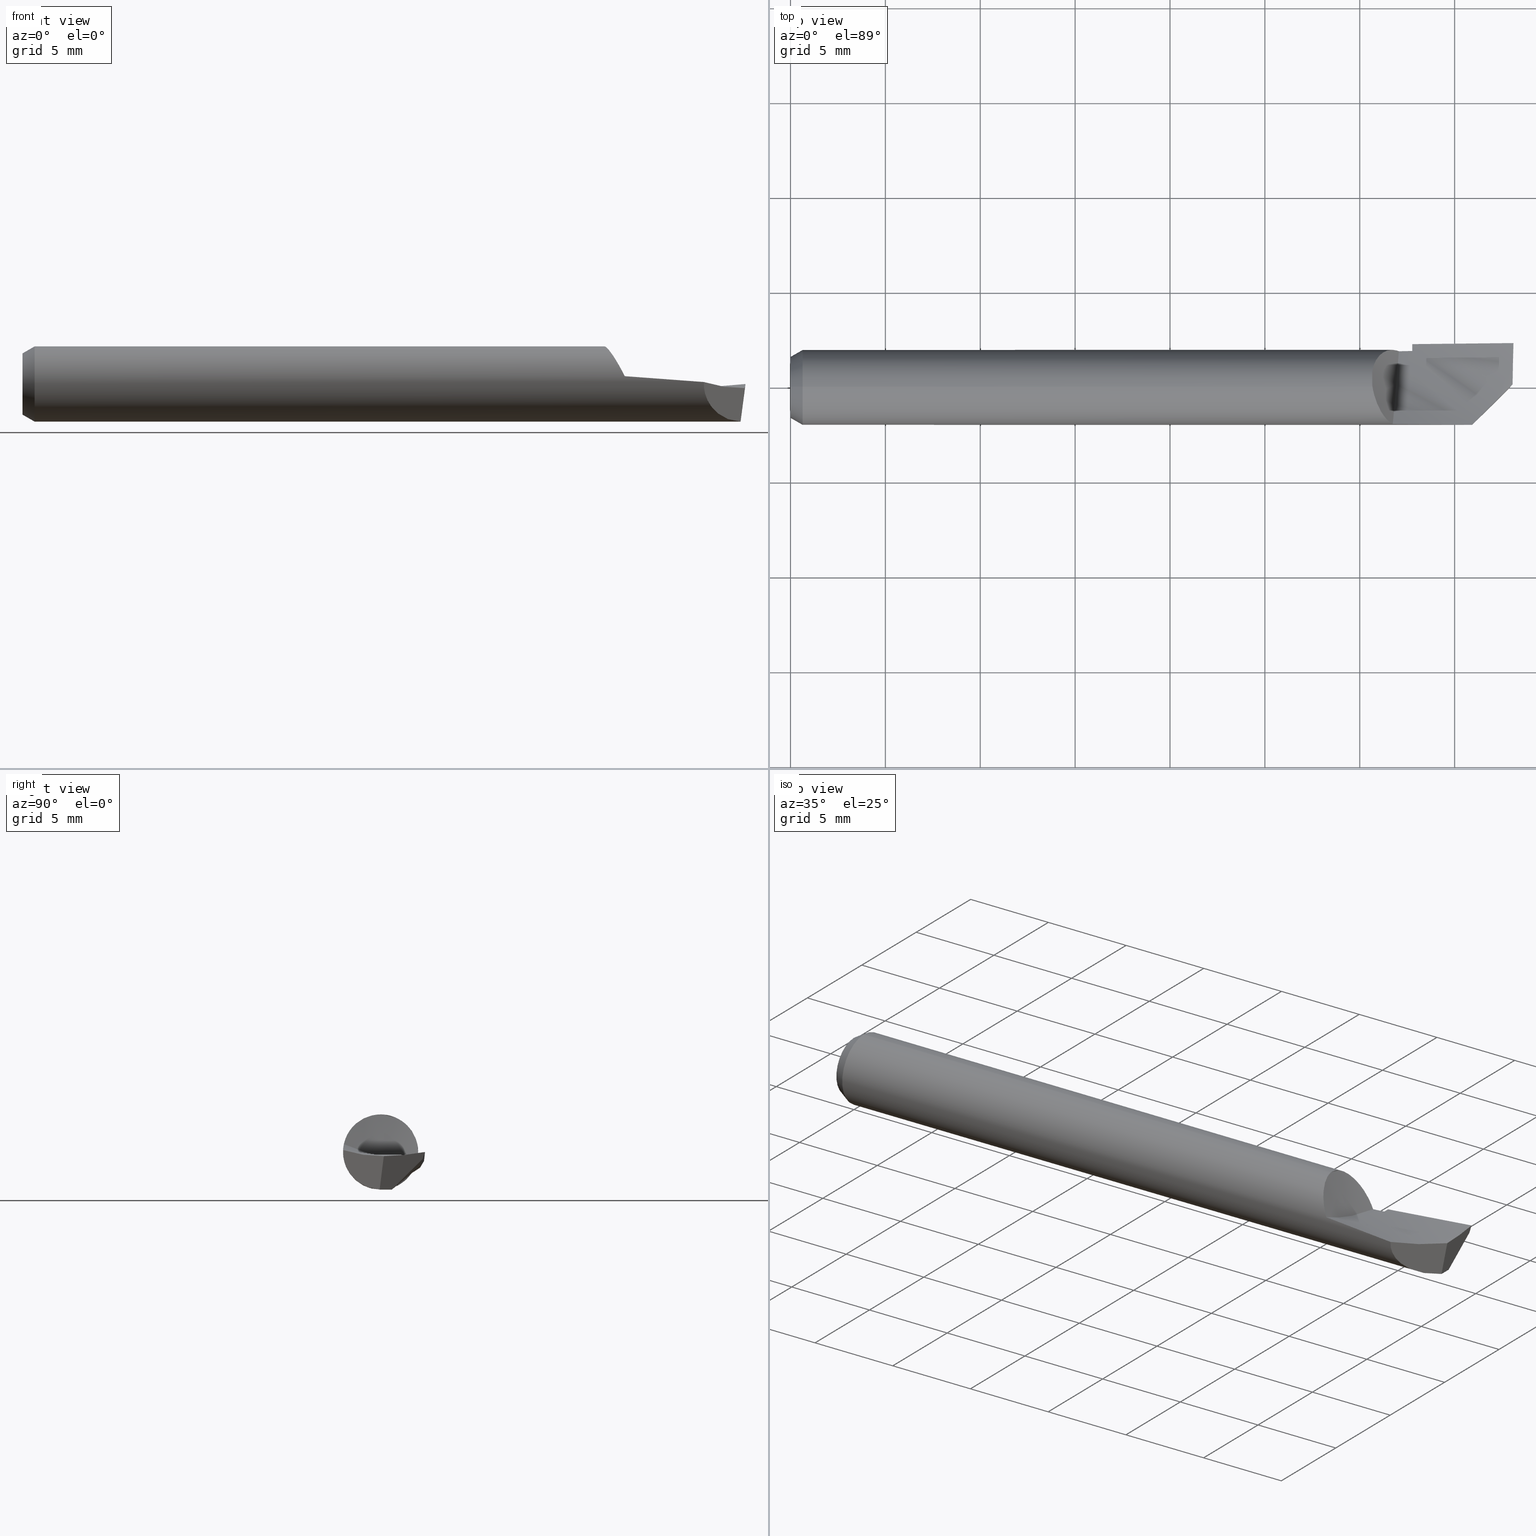
[diagram: canonical four-view strip — front | top / right | iso, engineering-drawing reading convention]
A machine part, canonical four-view strip (front | top / right | iso — engineering-drawing reading convention). The complete STEP part file that produces these views, byte-faithful:
ISO-10303-21;
HEADER;
FILE_DESCRIPTION (( 'STEP AP203' ),
    '1' );
FILE_NAME ('215745-HB180.STEP',
    '2024-07-31T17:39:54',
    ( '' ),
    ( '' ),
    'SwSTEP 2.0',
    'SolidWorks 2024',
    '' );
FILE_SCHEMA (( 'CONFIG_CONTROL_DESIGN' ));
ENDSEC;

DATA;
#1 = CARTESIAN_POINT ( 'NONE',  ( 1.489609005750359483, -0.001329931869569869361, -0.07799149631257126791 ) ) ;
#2 = CARTESIAN_POINT ( 'NONE',  ( 0.9642857142857156338, 0.06874579331457546238, -0.05727810710726084775 ) ) ;
#3 = ADVANCED_FACE ( 'NONE', ( #514 ), #50, .F. ) ;
#4 = FACE_OUTER_BOUND ( 'NONE', #508, .T. ) ;
#5 = CARTESIAN_POINT ( 'NONE',  ( 0.000000000000000000, 9.552245033349355435E-18, -0.07799999999999999989 ) ) ;
#6 = CARTESIAN_POINT ( 'NONE',  ( 1.413707719425090215, -0.07789228057490950319, 0.004097880774202420848 ) ) ;
#7 = CARTESIAN_POINT ( 'NONE',  ( 1.290000000000000258, 0.01440788481498633290, -0.07665776448056696446 ) ) ;
#8 = DIRECTION ( 'NONE',  ( 0.000000000000000000, 0.000000000000000000, 1.000000000000000000 ) ) ;
#9 = CARTESIAN_POINT ( 'NONE',  ( 1.233192256730258451, 0.07422136678863301695, 0.02437706961657288077 ) ) ;
#10 = CARTESIAN_POINT ( 'NONE',  ( 1.492937526068931042, 0.04743936089112409799, -0.05435003363301930263 ) ) ;
#11 = PRODUCT_DEFINITION ( 'UNKNOWN', '', #269, #254 ) ;
#12 = VECTOR ( 'NONE', #69, 39.37007874015748143 ) ;
#13 = CARTESIAN_POINT ( 'NONE',  ( 1.242361960131574294, 0.07733579007655222437, 0.01030139600367783841 ) ) ;
#14 = DIRECTION ( 'NONE',  ( -1.000000000000000000, -0.000000000000000000, -0.000000000000000000 ) ) ;
#15 = ORIENTED_EDGE ( 'NONE', *, *, #165, .F. ) ;
#16 = CARTESIAN_POINT ( 'NONE',  ( 1.207000000000000073, 0.03213068168702906680, 0.07107474441970799972 ) ) ;
#17 = CARTESIAN_POINT ( 'NONE',  ( 1.275000000000000133, 0.000000000000000000, 0.000000000000000000 ) ) ;
#18 = VERTEX_POINT ( 'NONE', #427 ) ;
#19 = B_SPLINE_CURVE_WITH_KNOTS ( 'NONE', 3,
 ( #396, #294, #496, #29 ),
 .UNSPECIFIED., .F., .F.,
 ( 4, 4 ),
 ( 4.377117882982191852E-19, 0.002180545539404321869 ),
 .UNSPECIFIED. ) ;
#20 = ADVANCED_FACE ( 'NONE', ( #171 ), #65, .T. ) ;
#21 = CARTESIAN_POINT ( 'NONE',  ( 1.206999999999999629, -0.004920103580575083124, 0.07723793751302800159 ) ) ;
#22 = DIRECTION ( 'NONE',  ( 0.000000000000000000, 0.000000000000000000, 1.000000000000000000 ) ) ;
#23 = CARTESIAN_POINT ( 'NONE',  ( 1.262236740664101964, 0.07537366590899778618, -0.02007013919829108220 ) ) ;
#24 = ORIENTED_EDGE ( 'NONE', *, *, #199, .F. ) ;
#25 = CIRCLE ( 'NONE', #117, 0.07799999999999999989 ) ;
#26 = CARTESIAN_POINT ( 'NONE',  ( 1.489597512497185861, -0.002527279204093492871, -0.07799999999999999989 ) ) ;
#27 = DIRECTION ( 'NONE',  ( 1.000000000000000000, 0.000000000000000000, 0.000000000000000000 ) ) ;
#28 = VERTEX_POINT ( 'NONE', #110 ) ;
#29 = CARTESIAN_POINT ( 'NONE',  ( 1.498210553536294398, 0.006610553536293644825, -0.008504524376991735857 ) ) ;
#30 = EDGE_CURVE ( 'NONE', #140, #660, #666, .T. ) ;
#31 = CARTESIAN_POINT ( 'NONE',  ( 1.274999347077172551, 0.06389939126767772704, -0.04473106073648399489 ) ) ;
#32 = ORIENTED_EDGE ( 'NONE', *, *, #319, .F. ) ;
#33 = CARTESIAN_POINT ( 'NONE',  ( 1.275000000000000133, 0.08147166713630049628, -0.03358123851258303788 ) ) ;
#34 = APPROVAL_STATUS ( 'not_yet_approved' ) ;
#35 = CARTESIAN_POINT ( 'NONE',  ( 1.207000000000000073, 0.003571119351597724229, 0.07791820779879786441 ) ) ;
#36 = EDGE_LOOP ( 'NONE', ( #361, #418, #452, #379, #103, #144, #346, #612 ) ) ;
#37 = CARTESIAN_POINT ( 'NONE',  ( 1.499999999999999556, -0.04866932979611954951, -0.01559319763665635399 ) ) ;
#38 = APPLICATION_PROTOCOL_DEFINITION ( 'international standard', 'config_control_design', 1994, #51 ) ;
#39 = AXIS2_PLACEMENT_3D ( 'NONE', #376, #266, #578 ) ;
#40 = CARTESIAN_POINT ( 'NONE',  ( 0.02499999999999999792, 0.000000000000000000, 0.000000000000000000 ) ) ;
#41 = ORIENTED_EDGE ( 'NONE', *, *, #399, .F. ) ;
#42 = CARTESIAN_POINT ( 'NONE',  ( 1.489822824260899736, 0.02329089165813441609, -0.07799999999999999989 ) ) ;
#43 = ADVANCED_FACE ( 'NONE', ( #59 ), #168, .F. ) ;
#44 = CARTESIAN_POINT ( 'NONE',  ( 1.498210553536294398, 0.006610553536293644825, -0.008504524376991735857 ) ) ;
#45 = ORIENTED_EDGE ( 'NONE', *, *, #199, .T. ) ;
#46 = DIRECTION ( 'NONE',  ( 1.000000000000000000, 0.000000000000000000, 0.000000000000000000 ) ) ;
#47 =( BOUNDED_CURVE ( )  B_SPLINE_CURVE ( 3, ( #197, #653, #209, #600 ),
 .UNSPECIFIED., .F., .T. ) 
 B_SPLINE_CURVE_WITH_KNOTS ( ( 4, 4 ),
 ( 7.560916247296860552E-05, 0.0004368982233191029733 ),
 .UNSPECIFIED. ) 
 CURVE ( )  GEOMETRIC_REPRESENTATION_ITEM ( )  RATIONAL_B_SPLINE_CURVE ( ( 0.9805333167045410248, 0.9796703147630011488, 0.9788740431655671426, 0.9781445019122390061 ) ) 
 REPRESENTATION_ITEM ( '' )  );
#48 = CC_DESIGN_DATE_AND_TIME_ASSIGNMENT ( #497, #384, ( #11 ) ) ;
#49 = CARTESIAN_POINT ( 'NONE',  ( 1.243898404004956326, -0.07389056700951129875, 0.02749594350433244572 ) ) ;
#50 = PLANE ( 'NONE',  #614 ) ;
#51 = APPLICATION_CONTEXT ( 'configuration controlled 3d designs of mechanical parts and assemblies' ) ;
#52 = AXIS2_PLACEMENT_3D ( 'NONE', #148, #46, #672 ) ;
#53 = EDGE_LOOP ( 'NONE', ( #32, #356, #248, #286, #260 ) ) ;
#54 = EDGE_CURVE ( 'NONE', #179, #660, #390, .T. ) ;
#55 = DIRECTION ( 'NONE',  ( -0.9925083585251990304, 0.008661489226065363992, 0.1218693434051474900 ) ) ;
#56 = ADVANCED_FACE ( 'NONE', ( #374 ), #61, .F. ) ;
#57 = PLANE ( 'NONE',  #52 ) ;
#58 = EDGE_CURVE ( 'NONE', #647, #297, #561, .T. ) ;
#59 = FACE_OUTER_BOUND ( 'NONE', #101, .T. ) ;
#60 = CARTESIAN_POINT ( 'NONE',  ( 1.228268766956857050, 0.07111053863217740856, 0.03205434320859988639 ) ) ;
#61 = PLANE ( 'NONE',  #443 ) ;
#62 = CARTESIAN_POINT ( 'NONE',  ( 1.260958533542752669, 0.07589766672437804618, -0.01810292729888073743 ) ) ;
#63 =( BOUNDED_CURVE ( )  B_SPLINE_CURVE ( 2, ( #604, #554, #389 ),
 .UNSPECIFIED., .F., .T. ) 
 B_SPLINE_CURVE_WITH_KNOTS ( ( 3, 3 ),
 ( 0.6854572081151814045, 0.7063240282674865256 ),
 .UNSPECIFIED. ) 
 CURVE ( )  GEOMETRIC_REPRESENTATION_ITEM ( )  RATIONAL_B_SPLINE_CURVE ( ( 0.9929101760011449507, 0.9927464883112000482, 0.9926357211951485349 ) ) 
 REPRESENTATION_ITEM ( '' )  );
#64 = ADVANCED_FACE ( 'NONE', ( #4 ), #596, .T. ) ;
#65 = CYLINDRICAL_SURFACE ( 'NONE', #415, 0.09199999999999999845 ) ;
#66 = CARTESIAN_POINT ( 'NONE',  ( 1.249726511411378471, 0.07827520131749497734, -0.0009205597306624405379 ) ) ;
#67 = CC_DESIGN_SECURITY_CLASSIFICATION ( #416, ( #269 ) ) ;
#68 = CARTESIAN_POINT ( 'NONE',  ( 1.251837397238958038, -0.05235793208925047793, 0.006052018071815274368 ) ) ;
#69 = DIRECTION ( 'NONE',  ( -1.000000000000000000, -0.000000000000000000, -0.000000000000000000 ) ) ;
#70 = CARTESIAN_POINT ( 'NONE',  ( 1.290000000000000258, 0.07588223334175300816, -0.01805233124156403746 ) ) ;
#71 = EDGE_LOOP ( 'NONE', ( #229, #382, #122, #15 ) ) ;
#72 = AXIS2_PLACEMENT_3D ( 'NONE', #17, #27, #181 ) ;
#73 = LINE ( 'NONE', #271, #207 ) ;
#74 = CARTESIAN_POINT ( 'NONE',  ( 1.496366815870363354, 0.07375142760749275883, -0.02829182226816429058 ) ) ;
#75 = EDGE_CURVE ( 'NONE', #328, #140, #210, .T. ) ;
#76 = ORIENTED_EDGE ( 'NONE', *, *, #319, .T. ) ;
#77 = CARTESIAN_POINT ( 'NONE',  ( 1.207000000000000073, 0.04340871078192806015, 0.06594305589205307072 ) ) ;
#78 = PERSON_AND_ORGANIZATION ( #150, #507 ) ;
#79 = PLANE ( 'NONE',  #278 ) ;
#80 = EDGE_LOOP ( 'NONE', ( #407, #560, #352 ) ) ;
#81 = CALENDAR_DATE ( 2024, 31, 7 ) ;
#82 = FACE_OUTER_BOUND ( 'NONE', #36, .T. ) ;
#83 = ORIENTED_EDGE ( 'NONE', *, *, #160, .T. ) ;
#84 = AXIS2_PLACEMENT_3D ( 'NONE', #549, #85, #353 ) ;
#85 = DIRECTION ( 'NONE',  ( 0.000000000000000000, -0.000000000000000000, 1.000000000000000000 ) ) ;
#86 = SECURITY_CLASSIFICATION_LEVEL ( 'unclassified' ) ;
#87 = CARTESIAN_POINT ( 'NONE',  ( 1.227055970727156886, -0.05435023697217546135, 0.05625500250299384636 ) ) ;
#88 = ORIENTED_EDGE ( 'NONE', *, *, #300, .T. ) ;
#89 = CARTESIAN_POINT ( 'NONE',  ( 1.290000000000000258, 0.07799999999999999989, 0.000000000000000000 ) ) ;
#90 = APPROVAL_ROLE ( '' ) ;
#91 = CARTESIAN_POINT ( 'NONE',  ( 1.219553846262205754, -0.04012620017288952984, 0.06693226266428028981 ) ) ;
#92 = ORIENTED_EDGE ( 'NONE', *, *, #54, .F. ) ;
#93 =( BOUNDED_CURVE ( )  B_SPLINE_CURVE ( 2, ( #102, #664, #668 ),
 .UNSPECIFIED., .F., .T. ) 
 B_SPLINE_CURVE_WITH_KNOTS ( ( 3, 3 ),
 ( 0.7100250597090421723, 1.000000000000000000 ),
 .UNSPECIFIED. ) 
 CURVE ( )  GEOMETRIC_REPRESENTATION_ITEM ( )  RATIONAL_B_SPLINE_CURVE ( ( 0.9805333167045442444, 0.9791416052276304960, 0.9878452547314452437 ) ) 
 REPRESENTATION_ITEM ( '' )  );
#94 = CARTESIAN_POINT ( 'NONE',  ( 0.9574074074074088170, 0.03488221641757158209, -0.03842249419939992167 ) ) ;
#95 = MANIFOLD_SOLID_BREP ( 'Front Angle', #473 ) ;
#96 = DIRECTION ( 'NONE',  ( -1.000000000000000000, -0.000000000000000000, -0.000000000000000000 ) ) ;
#97 = ORIENTED_EDGE ( 'NONE', *, *, #475, .T. ) ;
#98 = EDGE_CURVE ( 'NONE', #358, #179, #622, .T. ) ;
#99 = AXIS2_PLACEMENT_3D ( 'NONE', #378, #130, #334 ) ;
#100 = CARTESIAN_POINT ( 'NONE',  ( 0.02499999999999999792, 0.000000000000000000, 0.000000000000000000 ) ) ;
#101 = EDGE_LOOP ( 'NONE', ( #495, #45 ) ) ;
#102 = CARTESIAN_POINT ( 'NONE',  ( 1.290000000000000258, 0.09011996569922225975, -0.01850383155919340869 ) ) ;
#103 = ORIENTED_EDGE ( 'NONE', *, *, #30, .F. ) ;
#104 = FACE_OUTER_BOUND ( 'NONE', #53, .T. ) ;
#105 = ORIENTED_EDGE ( 'NONE', *, *, #75, .T. ) ;
#106 = EDGE_CURVE ( 'NONE', #237, #665, #470, .T. ) ;
#107 =( GEOMETRIC_REPRESENTATION_CONTEXT ( 3 ) GLOBAL_UNCERTAINTY_ASSIGNED_CONTEXT ( ( #511 ) ) GLOBAL_UNIT_ASSIGNED_CONTEXT ( ( #156, #161, #425 ) ) REPRESENTATION_CONTEXT ( 'NONE', 'WORKASPACE' ) );
#108 = CARTESIAN_POINT ( 'NONE',  ( 1.498210553536294398, 0.006610553536293644825, -0.008504524376991735857 ) ) ;
#109 = EDGE_CURVE ( 'NONE', #307, #660, #543, .T. ) ;
#110 = CARTESIAN_POINT ( 'NONE',  ( 1.207000000000000073, 0.03213068168702906680, 0.07107474441970799972 ) ) ;
#111 = EDGE_CURVE ( 'NONE', #175, #292, #646, .T. ) ;
#112 = APPLICATION_PROTOCOL_DEFINITION ( 'international standard', 'config_control_design', 1994, #277 ) ;
#113 = CARTESIAN_POINT ( 'NONE',  ( 1.228878611020636002, 0.07153477840623517769, 0.03109318362730305318 ) ) ;
#114 = CARTESIAN_POINT ( 'NONE',  ( 1.249636026273901690, -0.07628215470666116493, 0.01627983026044845308 ) ) ;
#115 = DIRECTION ( 'NONE',  ( 0.000000000000000000, 0.000000000000000000, 1.000000000000000000 ) ) ;
#116 =( BOUNDED_CURVE ( )  B_SPLINE_CURVE ( 1, ( #221, #7 ),
 .UNSPECIFIED., .F., .T. ) 
 B_SPLINE_CURVE_WITH_KNOTS ( ( 2, 2 ),
 ( 0.0006792974229936751731, 0.0007414794935028310146 ),
 .UNSPECIFIED. ) 
 CURVE ( )  GEOMETRIC_REPRESENTATION_ITEM ( )  RATIONAL_B_SPLINE_CURVE ( ( 0.9926357211951493120, 0.9926357211951493120 ) ) 
 REPRESENTATION_ITEM ( '' )  );
#117 = AXIS2_PLACEMENT_3D ( 'NONE', #408, #96, #306 ) ;
#118 = CARTESIAN_POINT ( 'NONE',  ( 1.289999999999999813, 0.08196010815168114361, -0.03237086340788372651 ) ) ;
#119 = CARTESIAN_POINT ( 'NONE',  ( 0.02499999999999999792, 0.000000000000000000, 0.07799999999999999989 ) ) ;
#120 = CARTESIAN_POINT ( 'NONE',  ( 1.500000000000000222, -0.01016491419934377645, -0.1119999999999999746 ) ) ;
#121 = CARTESIAN_POINT ( 'NONE',  ( 1.223166513449263970, 0.06685152326800650191, 0.04026820105912660985 ) ) ;
#122 = ORIENTED_EDGE ( 'NONE', *, *, #226, .F. ) ;
#123 = CARTESIAN_POINT ( 'NONE',  ( 1.208149882622706839, 0.03997953559271986285, 0.06752654570148050595 ) ) ;
#124 = EDGE_CURVE ( 'NONE', #292, #302, #170, .T. ) ;
#125 = CARTESIAN_POINT ( 'NONE',  ( 1.489605292493080491, -0.001994707506919228893, -0.07797449032832366733 ) ) ;
#126 = EDGE_LOOP ( 'NONE', ( #190, #410 ) ) ;
#127 = VECTOR ( 'NONE', #377, 39.37007874015748143 ) ;
#128 = CARTESIAN_POINT ( 'NONE',  ( 1.500000000000000222, -0.1419999999999999873, 0.01205098168753953279 ) ) ;
#129 = PERSON_AND_ORGANIZATION ( #150, #507 ) ;
#130 = DIRECTION ( 'NONE',  ( -1.000000000000000000, -0.000000000000000000, -0.000000000000000000 ) ) ;
#131 = ORIENTED_EDGE ( 'NONE', *, *, #313, .T. ) ;
#132 = CARTESIAN_POINT ( 'NONE',  ( 1.249125152857889498, -0.08368678484454253330, 0.01950772297894623475 ) ) ;
#133 = PERSON_AND_ORGANIZATION ( #150, #507 ) ;
#134 = CARTESIAN_POINT ( 'NONE',  ( 1.498569398542515474, 0.08811034926280761348, -0.01137442524580792487 ) ) ;
#135 =( BOUNDED_SURFACE ( )  B_SPLINE_SURFACE ( 1, 2, ( 
 ( #191, #401, #362, #366, #461 ),
 ( #570, #265, #610, #318, #465 ) ),
 .UNSPECIFIED., .F., .F., .T. ) 
 B_SPLINE_SURFACE_WITH_KNOTS ( ( 2, 2 ),
 ( 3, 2, 3 ),
 ( 0.000000000000000000, 1.000000000000000000 ),
 ( 0.000000000000000000, 0.5000000000000000000, 1.000000000000000000 ),
 .UNSPECIFIED. ) 
 GEOMETRIC_REPRESENTATION_ITEM ( )  RATIONAL_B_SPLINE_SURFACE ( (
 ( 1.000000000000000000, 0.9848077530122080203, 1.000000000000000000, 0.9848077530122080203, 1.000000000000000000),
 ( 1.000000000000000000, 0.9848077530122080203, 1.000000000000000000, 0.9848077530122080203, 1.000000000000000000) ) ) 
 REPRESENTATION_ITEM ( '' )  SURFACE ( )  );
#136 = ORIENTED_EDGE ( 'NONE', *, *, #607, .F. ) ;
#137 = CARTESIAN_POINT ( 'NONE',  ( 0.7765432098765450153, -0.1010320892095850770, 0.1005074281313567963 ) ) ;
#138 = SHAPE_DEFINITION_REPRESENTATION ( #172, #391 ) ;
#139 = DIRECTION ( 'NONE',  ( -1.000000000000000000, -0.000000000000000000, -0.000000000000000000 ) ) ;
#140 = VERTEX_POINT ( 'NONE', #541 ) ;
#141 = DIRECTION ( 'NONE',  ( -1.000000000000000000, -0.000000000000000000, -0.000000000000000000 ) ) ;
#142 = DATE_AND_TIME ( #81, #456 ) ;
#143 = CARTESIAN_POINT ( 'NONE',  ( 0.000000000000000000, 0.000000000000000000, 0.000000000000000000 ) ) ;
#144 = ORIENTED_EDGE ( 'NONE', *, *, #399, .T. ) ;
#145 = CARTESIAN_POINT ( 'NONE',  ( 1.319135802469136198, 0.1441249132155368040, -0.01298744957306248449 ) ) ;
#146 = B_SPLINE_CURVE_WITH_KNOTS ( 'NONE', 3,
 ( #178, #398, #479, #10, #595, #74, #381 ),
 .UNSPECIFIED., .F., .F.,
 ( 4, 3, 4 ),
 ( 2.235854684673608454E-05, 0.0008845270549140174217, 0.002301473312982700581 ),
 .UNSPECIFIED. ) ;
#147 = VERTEX_POINT ( 'NONE', #70 ) ;
#148 = CARTESIAN_POINT ( 'NONE',  ( 1.290000000000000258, 0.07799999999999999989, 0.000000000000000000 ) ) ;
#149 = DIRECTION ( 'NONE',  ( 0.000000000000000000, 0.000000000000000000, 1.000000000000000000 ) ) ;
#150 = PERSON ( 'UNSPECIFIED', 'UNSPECIFIED', 'UNSPECIFIED', ('UNSPECIFIED'), ('UNSPECIFIED'), ('UNSPECIFIED') ) ;
#151 = APPROVAL ( #34, 'UNSPECIFIED' ) ;
#152 = ORIENTED_EDGE ( 'NONE', *, *, #124, .F. ) ;
#153 = CARTESIAN_POINT ( 'NONE',  ( 1.413707719425090215, -0.07789228057490950319, 0.004097880774202420848 ) ) ;
#154 = VECTOR ( 'NONE', #290, 39.37007874015748143 ) ;
#155 = ORIENTED_EDGE ( 'NONE', *, *, #422, .T. ) ;
#156 =( CONVERSION_BASED_UNIT ( 'INCH', #620 ) LENGTH_UNIT ( ) NAMED_UNIT ( #420 ) );
#157 = DIRECTION ( 'NONE',  ( 0.000000000000000000, 0.000000000000000000, -1.000000000000000000 ) ) ;
#158 = EDGE_LOOP ( 'NONE', ( #92, #232, #202 ) ) ;
#159 = PRODUCT ( '215745-HB180', '215745-HB180', '', ( #339 ) ) ;
#160 = EDGE_CURVE ( 'NONE', #18, #336, #537, .T. ) ;
#161 =( NAMED_UNIT ( * ) PLANE_ANGLE_UNIT ( ) SI_UNIT ( $, .RADIAN. ) );
#162 = CARTESIAN_POINT ( 'NONE',  ( 1.290000000000000258, 0.01440788481498633290, -0.07665776448056696446 ) ) ;
#163 =( BOUNDED_CURVE ( )  B_SPLINE_CURVE ( 1, ( #659, #357 ),
 .UNSPECIFIED., .F., .T. ) 
 B_SPLINE_CURVE_WITH_KNOTS ( ( 2, 2 ),
 ( 0.000000000000000000, 0.0004029534795321224007 ),
 .UNSPECIFIED. ) 
 CURVE ( )  GEOMETRIC_REPRESENTATION_ITEM ( )  RATIONAL_B_SPLINE_CURVE ( ( 0.9926357211951493120, 0.9926357211951493120 ) ) 
 REPRESENTATION_ITEM ( '' )  );
#164 = AXIS2_PLACEMENT_3D ( 'NONE', #568, #411, #613 ) ;
#165 = EDGE_CURVE ( 'NONE', #341, #242, #331, .T. ) ;
#166 = CARTESIAN_POINT ( 'NONE',  ( 1.262236740664101964, 0.07537366590899778618, -0.02007013919829108220 ) ) ;
#167 = CARTESIAN_POINT ( 'NONE',  ( 1.258915496128698130, 0.07666655963511331828, -0.01500027379133487410 ) ) ;
#168 = PLANE ( 'NONE',  #39 ) ;
#169 = CARTESIAN_POINT ( 'NONE',  ( 1.228746349734594290, 0.07144407146482484317, 0.03130130681385237534 ) ) ;
#170 = CIRCLE ( 'NONE', #72, 0.07799999999999999989 ) ;
#171 = FACE_OUTER_BOUND ( 'NONE', #80, .T. ) ;
#172 = PRODUCT_DEFINITION_SHAPE ( 'NONE', 'NONE',  #11 ) ;
#173 = LINE ( 'NONE', #5, #127 ) ;
#174 = CARTESIAN_POINT ( 'NONE',  ( 1.290000000000000258, 0.000000000000000000, -0.07799999999999999989 ) ) ;
#175 = VERTEX_POINT ( 'NONE', #340 ) ;
#176 = CARTESIAN_POINT ( 'NONE',  ( 1.230860510622918902, 0.07288438005964482935, 0.02797697279419745359 ) ) ;
#177 = EDGE_CURVE ( 'NONE', #147, #328, #525, .T. ) ;
#178 = CARTESIAN_POINT ( 'NONE',  ( 1.489822824260899736, 0.02329089165813441609, -0.07799999999999999989 ) ) ;
#179 = VERTEX_POINT ( 'NONE', #125 ) ;
#180 = CARTESIAN_POINT ( 'NONE',  ( 1.225242906688724487, 0.06873737467267414247, 0.03688952246988545097 ) ) ;
#181 = DIRECTION ( 'NONE',  ( 0.000000000000000000, 0.000000000000000000, -1.000000000000000000 ) ) ;
#182 = ORIENTED_EDGE ( 'NONE', *, *, #106, .T. ) ;
#183 = COORDINATED_UNIVERSAL_TIME_OFFSET ( 8, 0, .BEHIND. ) ;
#184 = CARTESIAN_POINT ( 'NONE',  ( 1.199999999999999956, 0.000000000000000000, -0.07799999999999999989 ) ) ;
#185 = ADVANCED_FACE ( 'NONE', ( #231 ), #552, .T. ) ;
#186 = ORIENTED_EDGE ( 'NONE', *, *, #409, .T. ) ;
#187 = EDGE_CURVE ( 'NONE', #602, #663, #551, .T. ) ;
#188 = DATE_AND_TIME ( #649, #445 ) ;
#189 = CARTESIAN_POINT ( 'NONE',  ( 1.207000000000000073, 0.01309139763462998339, 0.07563926532108279643 ) ) ;
#190 = ORIENTED_EDGE ( 'NONE', *, *, #124, .T. ) ;
#191 = CARTESIAN_POINT ( 'NONE',  ( 1.500000000000000222, 0.09199999999999999845, 6.829619984160658046E-17 ) ) ;
#192 = CALENDAR_DATE ( 2024, 31, 7 ) ;
#193 = FACE_OUTER_BOUND ( 'NONE', #567, .T. ) ;
#194 = EDGE_LOOP ( 'NONE', ( #400, #97, #538, #584, #363, #131, #155, #533, #581, #245, #152, #619 ) ) ;
#195 = AXIS2_PLACEMENT_3D ( 'NONE', #547, #14, #437 ) ;
#196 = CARTESIAN_POINT ( 'NONE',  ( 1.206999999999999851, -0.04961868045772162977, 0.09693562702557656507 ) ) ;
#197 = CARTESIAN_POINT ( 'NONE',  ( 1.290000000000000258, 0.09011996569922225975, -0.01850383155919340869 ) ) ;
#198 = ORIENTED_EDGE ( 'NONE', *, *, #58, .T. ) ;
#199 = EDGE_CURVE ( 'NONE', #404, #28, #601, .T. ) ;
#200 = CC_DESIGN_PERSON_AND_ORGANIZATION_ASSIGNMENT ( #129, #606, ( #159 ) ) ;
#201 = CARTESIAN_POINT ( 'NONE',  ( 1.249636026273901690, -0.07628215470666116493, 0.01627983026044845308 ) ) ;
#202 = ORIENTED_EDGE ( 'NONE', *, *, #109, .T. ) ;
#203 = CARTESIAN_POINT ( 'NONE',  ( 1.423210708341599462, 0.01972960866568087765, -0.07799999999999999989 ) ) ;
#204 = CARTESIAN_POINT ( 'NONE',  ( 1.500000000000000222, 0.09199999999999999845, 0.000000000000000000 ) ) ;
#205 = ORIENTED_EDGE ( 'NONE', *, *, #109, .F. ) ;
#206 =( LENGTH_UNIT ( ) NAMED_UNIT ( * ) SI_UNIT ( $, .METRE. ) );
#207 = VECTOR ( 'NONE', #273, 39.37007874015748854 ) ;
#208 = LOCAL_TIME ( 10, 39, 54.00000000000000000, #540 ) ;
#209 = CARTESIAN_POINT ( 'NONE',  ( 1.290000000000000258, 0.08062776778442155845, -0.01827052445992781091 ) ) ;
#210 = B_SPLINE_CURVE_WITH_KNOTS ( 'NONE', 3,
 ( #166, #325, #471, #430, #68, #114 ),
 .UNSPECIFIED., .F., .F.,
 ( 4, 2, 4 ),
 ( 0.000000000000000000, 0.5000000000000000000, 1.000000000000000000 ),
 .UNSPECIFIED. ) ;
#211 = ORIENTED_EDGE ( 'NONE', *, *, #486, .T. ) ;
#212 = CARTESIAN_POINT ( 'NONE',  ( 0.02499999999999999792, 0.000000000000000000, -0.07799999999999999989 ) ) ;
#213 = CARTESIAN_POINT ( 'NONE',  ( 1.469695330231047814, -0.02190466976895240683, -0.009013655983420583440 ) ) ;
#214 = CIRCLE ( 'NONE', #517, 0.07799999999999999989 ) ;
#215 = CC_DESIGN_APPROVAL ( #151, ( #11 ) ) ;
#216 = CARTESIAN_POINT ( 'NONE',  ( 1.321428571428571841, -0.02991353603869184932, -0.1102076513700690902 ) ) ;
#217 = DIRECTION ( 'NONE',  ( 0.000000000000000000, 0.000000000000000000, -1.000000000000000000 ) ) ;
#218 = EDGE_CURVE ( 'NONE', #467, #18, #146, .T. ) ;
#219 = PRODUCT_RELATED_PRODUCT_CATEGORY ( 'detail', '', ( #159 ) ) ;
#220 = CARTESIAN_POINT ( 'NONE',  ( 0.7857142857142874748, 0.05687772080005343289, -0.06730718388551332199 ) ) ;
#221 = CARTESIAN_POINT ( 'NONE',  ( 1.290000000000000258, 0.01236053014841396319, -0.07800000000000002764 ) ) ;
#222 = FACE_OUTER_BOUND ( 'NONE', #553, .T. ) ;
#223 = CIRCLE ( 'NONE', #164, 0.07799999999999999989 ) ;
#224 = CARTESIAN_POINT ( 'NONE',  ( 1.498251624336321752, 0.08724183378585957660, -0.01390066285178455374 ) ) ;
#225 = ADVANCED_FACE ( 'NONE', ( #82 ), #282, .T. ) ;
#226 = EDGE_CURVE ( 'NONE', #242, #358, #587, .T. ) ;
#227 = CARTESIAN_POINT ( 'NONE',  ( 1.218178046635909562, 0.06118653591288300553, 0.04863726075567930546 ) ) ;
#228 = CARTESIAN_POINT ( 'NONE',  ( 1.499046133992733010, 0.08941090270279790364, -0.007584307266738654803 ) ) ;
#229 = ORIENTED_EDGE ( 'NONE', *, *, #638, .T. ) ;
#230 = DIRECTION ( 'NONE',  ( 0.8660254037844377084, 6.123233995736780827E-17, 0.5000000000000012212 ) ) ;
#231 = FACE_OUTER_BOUND ( 'NONE', #194, .T. ) ;
#232 = ORIENTED_EDGE ( 'NONE', *, *, #469, .T. ) ;
#233 = CARTESIAN_POINT ( 'NONE',  ( 0.7765432098765450153, -0.04730598387687841300, 0.01933895976467695996 ) ) ;
#234 = PERSON_AND_ORGANIZATION ( #150, #507 ) ;
#235 = DIRECTION ( 'NONE',  ( -1.000000000000000000, -0.000000000000000000, -0.000000000000000000 ) ) ;
#236 = AXIS2_PLACEMENT_3D ( 'NONE', #100, #370, #559 ) ;
#237 = VERTEX_POINT ( 'NONE', #444 ) ;
#238 = DIRECTION ( 'NONE',  ( -0.008726535498366806698, -0.9999619230641711987, 0.000000000000000000 ) ) ;
#239 = DATE_AND_TIME ( #545, #527 ) ;
#240 = CARTESIAN_POINT ( 'NONE',  ( 1.499284567383817990, 0.09005917767487985059, -0.005688571223023153670 ) ) ;
#241 = B_SPLINE_CURVE_WITH_KNOTS ( 'NONE', 3,
 ( #201, #49, #251, #255, #87, #459, #463, #566, #451, #296, #312, #403, #555, #91, #502, #258, #466, #579, #637 ),
 .UNSPECIFIED., .F., .F.,
 ( 4, 2, 2, 1, 2, 2, 1, 1, 2, 2, 4 ),
 ( 0.000000000000000000, 0.2424613042770835947, 0.4849226085541671893, 0.4924995243128265088, 0.4962879821921559187, 0.5000764400714853286, 0.5152302715887997486, 0.5455379346234286997, 0.6061532606926853806, 0.7273839128311987423, 0.9698452171082266871 ),
 .UNSPECIFIED. ) ;
#242 = VERTEX_POINT ( 'NONE', #174 ) ;
#243 = FACE_OUTER_BOUND ( 'NONE', #556, .T. ) ;
#244 = CARTESIAN_POINT ( 'NONE',  ( 1.207075393151257670, 0.002981413769860111890, 0.07794523606406283944 ) ) ;
#245 = ORIENTED_EDGE ( 'NONE', *, *, #573, .F. ) ;
#246 = CARTESIAN_POINT ( 'NONE',  ( 1.138271604938272619, -0.1293146736676117070, 0.05989107891725196919 ) ) ;
#247 = CARTESIAN_POINT ( 'NONE',  ( 1.207408988815073636, 0.0005994693865612787985, 0.07799826944352111768 ) ) ;
#248 = ORIENTED_EDGE ( 'NONE', *, *, #509, .F. ) ;
#249 = CARTESIAN_POINT ( 'NONE',  ( 1.499999999999999556, 0.04866932979611948706, -0.01559319763665636786 ) ) ;
#250 = COORDINATED_UNIVERSAL_TIME_OFFSET ( 8, 0, .BEHIND. ) ;
#251 = CARTESIAN_POINT ( 'NONE',  ( 1.238862976349409450, -0.06935741945142365195, 0.03672750959377762969 ) ) ;
#252 = ORIENTED_EDGE ( 'NONE', *, *, #486, .F. ) ;
#253 = EDGE_CURVE ( 'NONE', #460, #665, #585, .T. ) ;
#254 = DESIGN_CONTEXT ( 'detailed design', #51, 'design' ) ;
#255 = CARTESIAN_POINT ( 'NONE',  ( 1.230441759710509952, -0.05958496316865238840, 0.05107831005536581787 ) ) ;
#256 = ORIENTED_EDGE ( 'NONE', *, *, #522, .T. ) ;
#257 = CARTESIAN_POINT ( 'NONE',  ( 0.02499999999999999792, 9.552245033349355435E-18, -0.07799999999999999989 ) ) ;
#258 = CARTESIAN_POINT ( 'NONE',  ( 1.215083676285801273, -0.02931723955610072638, 0.07242544898273661769 ) ) ;
#259 = ADVANCED_FACE ( 'NONE', ( #580 ), #79, .T. ) ;
#260 = ORIENTED_EDGE ( 'NONE', *, *, #187, .T. ) ;
#261 = CIRCLE ( 'NONE', #576, 0.06356624327025930943 ) ;
#262 = B_SPLINE_SURFACE_WITH_KNOTS ( 'NONE', 1, 3, ( 
 ( #196, #21, #77, #441 ),
 ( #132, #651, #656, #544 ) ),
 .UNSPECIFIED., .F., .F., .F.,
 ( 2, 2 ),
 ( 4, 4 ),
 ( 0.000000000000000000, 1.000000000000000000 ),
 ( 0.01089608493490853633, 0.01461970672265010263 ),
 .UNSPECIFIED. ) ;
#263 = ORIENTED_EDGE ( 'NONE', *, *, #535, .F. ) ;
#264 = CARTESIAN_POINT ( 'NONE',  ( 1.142857142857143904, 0.07646798720230180146, -0.04379473780302543112 ) ) ;
#265 = CARTESIAN_POINT ( 'NONE',  ( 1.321428571428571841, 0.08419018109002815442, -0.03031136849879001449 ) ) ;
#266 = DIRECTION ( 'NONE',  ( -1.000000000000000000, 0.000000000000000000, 0.000000000000000000 ) ) ;
#267 = EDGE_CURVE ( 'NONE', #602, #336, #93, .T. ) ;
#268 = CARTESIAN_POINT ( 'NONE',  ( 1.228554949269598406, 0.07131117426569102968, 0.03160290462242616727 ) ) ;
#269 = PRODUCT_DEFINITION_FORMATION_WITH_SPECIFIED_SOURCE ( 'ANY', '', #159, .NOT_KNOWN. ) ;
#270 = CARTESIAN_POINT ( 'NONE',  ( 1.489619567728670324, 0.000000000000000000, -0.07799999999999999989 ) ) ;
#271 = CARTESIAN_POINT ( 'NONE',  ( 1.484275291761521176, -0.007324708238478513066, -0.1210033964222349545 ) ) ;
#272 = CARTESIAN_POINT ( 'NONE',  ( 1.500000000000000222, 0.08683508580065511795, -0.01499999999999999944 ) ) ;
#273 = DIRECTION ( 'NONE',  ( 0.1220122463319277123, 0.1220122463319270739, 0.9850005195379716305 ) ) ;
#274 = EDGE_CURVE ( 'NONE', #438, #404, #304, .T. ) ;
#275 = CARTESIAN_POINT ( 'NONE',  ( 1.499761478885182520, 0.09135439532460938594, -0.001896640252115041085 ) ) ;
#276 = CARTESIAN_POINT ( 'NONE',  ( 1.289999999999999813, 0.08196010815168114361, -0.03237086340788372651 ) ) ;
#277 = APPLICATION_CONTEXT ( 'configuration controlled 3d designs of mechanical parts and assemblies' ) ;
#278 = AXIS2_PLACEMENT_3D ( 'NONE', #285, #489, #494 ) ;
#279 = CARTESIAN_POINT ( 'NONE',  ( 1.290000000000000258, 0.07799999999999999989, -0.07799999999999999989 ) ) ;
#280 = EDGE_LOOP ( 'NONE', ( #41, #655, #616, #24, #490 ) ) ;
#281 = CARTESIAN_POINT ( 'NONE',  ( 1.394801299672613792, 0.08526062632099458416, -0.02401424892080530893 ) ) ;
#282 = CYLINDRICAL_SURFACE ( 'NONE', #367, 0.07799999999999999989 ) ;
#283 = ORIENTED_EDGE ( 'NONE', *, *, #218, .F. ) ;
#284 = CARTESIAN_POINT ( 'NONE',  ( 1.138271604938272397, -0.05106739775860396485, 0.001993078398810804383 ) ) ;
#285 = CARTESIAN_POINT ( 'NONE',  ( 1.275000000000000133, 0.1202098394069668341, 0.02436379506052457206 ) ) ;
#286 = ORIENTED_EDGE ( 'NONE', *, *, #300, .F. ) ;
#287 = EDGE_CURVE ( 'NONE', #237, #609, #658, .T. ) ;
#288 = LINE ( 'NONE', #26, #468 ) ;
#289 = PERSON_AND_ORGANIZATION ( #150, #507 ) ;
#290 = DIRECTION ( 'NONE',  ( 1.000000000000000000, -0.000000000000000000, -0.000000000000000000 ) ) ;
#291 = VECTOR ( 'NONE', #642, 39.37007874015748854 ) ;
#292 = VERTEX_POINT ( 'NONE', #506 ) ;
#293 = LOCAL_TIME ( 10, 39, 54.00000000000000000, #183 ) ;
#294 = CARTESIAN_POINT ( 'NONE',  ( 1.499096292141820941, 0.06381697989133203186, -0.005356808034226923608 ) ) ;
#295 = DATE_AND_TIME ( #343, #293 ) ;
#296 = CARTESIAN_POINT ( 'NONE',  ( 1.224092724940147869, -0.04910924457521492759, 0.06059957606048550077 ) ) ;
#297 = VERTEX_POINT ( 'NONE', #455 ) ;
#298 = CARTESIAN_POINT ( 'NONE',  ( 0.9574074074074087060, 0.1309911480556356644, -0.06149783400141338452 ) ) ;
#299 = PERSON_AND_ORGANIZATION_ROLE ( 'creator' ) ;
#300 = EDGE_CURVE ( 'NONE', #602, #147, #47, .T. ) ;
#301 = DIRECTION ( 'NONE',  ( -1.000000000000000000, -0.000000000000000000, -0.000000000000000000 ) ) ;
#302 = VERTEX_POINT ( 'NONE', #31 ) ;
#303 = CARTESIAN_POINT ( 'NONE',  ( 0.9574074074074088170, -0.05071596426222638870, 0.01099763845822366963 ) ) ;
#304 = B_SPLINE_CURVE_WITH_KNOTS ( 'NONE', 3,
 ( #309, #498, #247, #417, #406, #244, #35 ),
 .UNSPECIFIED., .F., .F.,
 ( 4, 2, 1, 4 ),
 ( 0.9698452171082266871, 0.9773839128311698765, 0.9849226085541130660, 1.000000000000000000 ),
 .UNSPECIFIED. ) ;
#305 = APPROVAL_STATUS ( 'not_yet_approved' ) ;
#306 = DIRECTION ( 'NONE',  ( 0.000000000000000000, 0.000000000000000000, 1.000000000000000000 ) ) ;
#307 = VERTEX_POINT ( 'NONE', #44 ) ;
#308 = VECTOR ( 'NONE', #435, 39.37007874015748143 ) ;
#309 = CARTESIAN_POINT ( 'NONE',  ( 1.207498938882741735, -4.673349976021370457E-07, 0.07800176490495329407 ) ) ;
#310 = ORIENTED_EDGE ( 'NONE', *, *, #177, .T. ) ;
#311 = CARTESIAN_POINT ( 'NONE',  ( 1.356597255848961625, 0.01619268934767225873, -0.07799999999999994438 ) ) ;
#312 = CARTESIAN_POINT ( 'NONE',  ( 1.223741914051305057, -0.04847555582096993443, 0.06111092235590564331 ) ) ;
#313 = EDGE_CURVE ( 'NONE', #404, #28, #493, .T. ) ;
#314 = ORIENTED_EDGE ( 'NONE', *, *, #413, .T. ) ;
#315 = ORIENTED_EDGE ( 'NONE', *, *, #218, .T. ) ;
#316 = AXIS2_PLACEMENT_3D ( 'NONE', #639, #235, #386 ) ;
#317 = CARTESIAN_POINT ( 'NONE',  ( 1.441526390384526568, -0.05007360961547365624, -0.004830854321361215294 ) ) ;
#318 = CARTESIAN_POINT ( 'NONE',  ( 0.9642857142857156338, 0.06874579331457546238, -0.05727810710726084775 ) ) ;
#319 = EDGE_CURVE ( 'NONE', #297, #663, #163, .T. ) ;
#320 = CARTESIAN_POINT ( 'NONE',  ( 1.399495456089608680, -0.09210454391039075983, -0.09999999999999999167 ) ) ;
#321 = LINE ( 'NONE', #530, #345 ) ;
#322 = DIRECTION ( 'NONE',  ( -0.7071067811865493491, -0.7071067811865457964, 0.000000000000000000 ) ) ;
#323 = CARTESIAN_POINT ( 'NONE',  ( 1.321428571428571841, 0.08419018109002815442, -0.03031136849879001449 ) ) ;
#324 = CARTESIAN_POINT ( 'NONE',  ( 1.489822824260899736, 0.02329089165813441609, -0.07799999999999999989 ) ) ;
#325 = CARTESIAN_POINT ( 'NONE',  ( 1.260155652957460681, 0.04941456247743349767, -0.01833526552309209037 ) ) ;
#326 = CARTESIAN_POINT ( 'NONE',  ( 1.238778033099654285, 0.07642429516971288583, 0.01579024639123554827 ) ) ;
#327 = CARTESIAN_POINT ( 'NONE',  ( 1.274998041231548473, 0.01328314177590176129, -0.07686064105601791985 ) ) ;
#328 = VERTEX_POINT ( 'NONE', #563 ) ;
#329 = CARTESIAN_POINT ( 'NONE',  ( 1.241141698783302827, 0.07705463380532516504, 0.01216900170301853795 ) ) ;
#330 = APPROVAL_PERSON_ORGANIZATION ( #234, #151, #492 ) ;
#331 = LINE ( 'NONE', #279, #308 ) ;
#332 = ORIENTED_EDGE ( 'NONE', *, *, #111, .T. ) ;
#333 = CARTESIAN_POINT ( 'NONE',  ( 1.500000000000000222, 0.1419999999999999596, 0.01205098168753953279 ) ) ;
#334 = DIRECTION ( 'NONE',  ( 0.000000000000000000, 0.000000000000000000, 1.000000000000000000 ) ) ;
#335 = EDGE_CURVE ( 'NONE', #336, #663, #603, .T. ) ;
#336 = VERTEX_POINT ( 'NONE', #204 ) ;
#337 = APPROVAL ( #657, 'UNSPECIFIED' ) ;
#338 = DIRECTION ( 'NONE',  ( 1.000000000000000000, 0.000000000000000000, 0.000000000000000000 ) ) ;
#339 = MECHANICAL_CONTEXT ( 'NONE', #277, 'mechanical' ) ;
#340 = CARTESIAN_POINT ( 'NONE',  ( 1.290000000000000258, 0.01440788481498633290, -0.07665776448056696446 ) ) ;
#341 = VERTEX_POINT ( 'NONE', #615 ) ;
#342 = CARTESIAN_POINT ( 'NONE',  ( 0.9574074074074087060, -0.1187542605507602989, 0.08269274488636239873 ) ) ;
#343 = CALENDAR_DATE ( 2024, 31, 7 ) ;
#344 = CARTESIAN_POINT ( 'NONE',  ( 1.499523001240421038, 0.09070745391265556956, -0.003792831478067595907 ) ) ;
#345 = VECTOR ( 'NONE', #230, 39.37007874015748854 ) ;
#346 = ORIENTED_EDGE ( 'NONE', *, *, #453, .T. ) ;
#347 = APPROVAL_PERSON_ORGANIZATION ( #442, #645, #594 ) ;
#348 = FACE_OUTER_BOUND ( 'NONE', #280, .T. ) ;
#349 = ADVANCED_FACE ( 'NONE', ( #662 ), #667, .T. ) ;
#350 = PERSON_AND_ORGANIZATION_ROLE ( 'classification_officer' ) ;
#351 = CARTESIAN_POINT ( 'NONE',  ( 1.489619567728670324, 0.000000000000000000, -0.07799999999999999989 ) ) ;
#352 = ORIENTED_EDGE ( 'NONE', *, *, #187, .F. ) ;
#353 = DIRECTION ( 'NONE',  ( 1.000000000000000000, 0.000000000000000000, -0.000000000000000000 ) ) ;
#354 = ADVANCED_FACE ( 'NONE', ( #193 ), #385, .T. ) ;
#355 = CARTESIAN_POINT ( 'NONE',  ( 1.500000000000000222, 0.09199999999999999845, 0.000000000000000000 ) ) ;
#356 = ORIENTED_EDGE ( 'NONE', *, *, #58, .F. ) ;
#357 = CARTESIAN_POINT ( 'NONE',  ( 1.290000000000051994, 0.09007174172627360753, -0.01873716473737321864 ) ) ;
#358 = VERTEX_POINT ( 'NONE', #351 ) ;
#359 = CARTESIAN_POINT ( 'NONE',  ( 1.290000000000051994, 0.09007174172627360753, -0.01873716473737321864 ) ) ;
#360 = CARTESIAN_POINT ( 'NONE',  ( 1.395779169323680735, 0.09200000000000001232, -0.009467801754923010904 ) ) ;
#361 = ORIENTED_EDGE ( 'NONE', *, *, #475, .F. ) ;
#362 = CARTESIAN_POINT ( 'NONE',  ( 1.142857142857143904, 0.08645172111230360612, -0.03146585318596145653 ) ) ;
#363 = ORIENTED_EDGE ( 'NONE', *, *, #274, .T. ) ;
#364 = CARTESIAN_POINT ( 'NONE',  ( 1.289999999999999813, 0.06455258005694464174, -0.04378315210205580010 ) ) ;
#365 = DIRECTION ( 'NONE',  ( -1.000000000000000000, -0.000000000000000000, -0.000000000000000000 ) ) ;
#366 = CARTESIAN_POINT ( 'NONE',  ( 0.9642857142857156338, 0.08090344222460721380, -0.04670962414674421220 ) ) ;
#367 = AXIS2_PLACEMENT_3D ( 'NONE', #485, #139, #592 ) ;
#368 = CC_DESIGN_DATE_AND_TIME_ASSIGNMENT ( #239, #550, ( #416 ) ) ;
#369 = CARTESIAN_POINT ( 'NONE',  ( 1.489605292493080491, -0.001994707506919228893, -0.07797449032832366733 ) ) ;
#370 = DIRECTION ( 'NONE',  ( 1.000000000000000000, 0.000000000000000000, 0.000000000000000000 ) ) ;
#371 = EDGE_CURVE ( 'NONE', #175, #242, #25, .T. ) ;
#372 = CARTESIAN_POINT ( 'NONE',  ( 1.289999999999999813, 0.06455258005694464174, -0.04378315210205580010 ) ) ;
#373 = PLANE ( 'NONE',  #624 ) ;
#374 = FACE_OUTER_BOUND ( 'NONE', #158, .T. ) ;
#375 = CARTESIAN_POINT ( 'NONE',  ( 1.244944988539522290, 0.07774102695451454159, 0.006359667307173379885 ) ) ;
#376 = CARTESIAN_POINT ( 'NONE',  ( 1.207000000000000073, 0.1371138399030991661, 0.4719489325202751995 ) ) ;
#377 = DIRECTION ( 'NONE',  ( -1.000000000000000000, -0.000000000000000000, -0.000000000000000000 ) ) ;
#378 = CARTESIAN_POINT ( 'NONE',  ( 0.02499999999999999792, 0.000000000000000000, 0.000000000000000000 ) ) ;
#379 = ORIENTED_EDGE ( 'NONE', *, *, #54, .T. ) ;
#380 = PLANE ( 'NONE',  #426 ) ;
#381 = CARTESIAN_POINT ( 'NONE',  ( 1.498092766588149827, 0.08680668762895282775, -0.01516347944558048971 ) ) ;
#382 = ORIENTED_EDGE ( 'NONE', *, *, #605, .T. ) ;
#383 = CARTESIAN_POINT ( 'NONE',  ( 0.7765432098765450153, 0.1165245326362046446, -0.08204425301962030292 ) ) ;
#384 = DATE_TIME_ROLE ( 'creation_date' ) ;
#385 = CONICAL_SURFACE ( 'NONE', #236, 0.07799999999999999989, 0.5235987755983003700 ) ;
#386 = DIRECTION ( 'NONE',  ( 0.000000000000000000, 0.000000000000000000, 1.000000000000000000 ) ) ;
#387 = CC_DESIGN_PERSON_AND_ORGANIZATION_ASSIGNMENT ( #590, #299, ( #269 ) ) ;
#388 = ORIENTED_EDGE ( 'NONE', *, *, #605, .F. ) ;
#389 = CARTESIAN_POINT ( 'NONE',  ( 1.289999999999999813, 0.06455258005694464174, -0.04378315210205580010 ) ) ;
#390 =( BOUNDED_CURVE ( )  B_SPLINE_CURVE ( 3, ( #369, #519, #571, #6 ),
 .UNSPECIFIED., .F., .T. ) 
 B_SPLINE_CURVE_WITH_KNOTS ( ( 4, 4 ),
 ( 4.737964941792221829, 6.335746438371414158 ),
 .UNSPECIFIED. ) 
 CURVE ( )  GEOMETRIC_REPRESENTATION_ITEM ( )  RATIONAL_B_SPLINE_CURVE ( ( 1.000000000000000000, 0.7983346726847653230, 0.7983346726847653230, 1.000000000000000000 ) ) 
 REPRESENTATION_ITEM ( '' )  );
#391 = ADVANCED_BREP_SHAPE_REPRESENTATION ( '215745-HB180', ( #95, #481 ), #107 ) ;
#392 = PERSON_AND_ORGANIZATION ( #150, #507 ) ;
#393 = CARTESIAN_POINT ( 'NONE',  ( 1.276110714727377804, 0.07564140876576563866, -0.01906462745588827223 ) ) ;
#394 = ORIENTED_EDGE ( 'NONE', *, *, #573, .T. ) ;
#395 = B_SPLINE_CURVE_WITH_KNOTS ( 'NONE', 3,
 ( #16, #123, #429, #628, #227, #577, #121, #180, #477, #431, #60, #268, #169, #113, #176, #9, #575, #326, #329, #13, #526, #529, #375, #523, #66, #436, #167, #62, #534 ),
 .UNSPECIFIED., .F., .F.,
 ( 4, 2, 2, 2, 1, 1, 1, 2, 2, 2, 2, 1, 1, 2, 2, 2, 4 ),
 ( 0.000000000000000000, 0.2499999999999992784, 0.3749999999999988898, 0.4374999999999980016, 0.4687499999999976685, 0.4843749999999974465, 0.4921874999999973355, 0.4960937499999972800, 0.4999999999999972244, 0.6249999999999977796, 0.6874999999999997780, 0.7187500000000007772, 0.7343750000000013323, 0.7421875000000015543, 0.7500000000000016653, 0.8750000000000007772, 1.000000000000000000 ),
 .UNSPECIFIED. ) ;
#396 = CARTESIAN_POINT ( 'NONE',  ( 1.500000000000000222, 0.09199999999999999845, 0.000000000000000000 ) ) ;
#397 = APPROVAL_DATE_TIME ( #188, #337 ) ;
#398 = CARTESIAN_POINT ( 'NONE',  ( 1.490858271440168137, 0.03136457811169572618, -0.07014109303256171879 ) ) ;
#399 = EDGE_CURVE ( 'NONE', #140, #438, #241, .T. ) ;
#400 = ORIENTED_EDGE ( 'NONE', *, *, #371, .T. ) ;
#401 = CARTESIAN_POINT ( 'NONE',  ( 1.321428571428571841, 0.09200000000000001232, -0.01622208222517871126 ) ) ;
#402 = DIRECTION ( 'NONE',  ( 1.000000000000000000, 0.000000000000000000, 0.000000000000000000 ) ) ;
#403 = CARTESIAN_POINT ( 'NONE',  ( 1.222909934234173379, -0.04694550101351054744, 0.06231412156065058161 ) ) ;
#404 = VERTEX_POINT ( 'NONE', #484 ) ;
#405 = PLANE ( 'NONE',  #84 ) ;
#406 = CARTESIAN_POINT ( 'NONE',  ( 1.207193420762889602, 0.002092418631500826427, 0.07797591368788313326 ) ) ;
#407 = ORIENTED_EDGE ( 'NONE', *, *, #267, .T. ) ;
#408 = CARTESIAN_POINT ( 'NONE',  ( 1.290000000000000258, 0.000000000000000000, 0.000000000000000000 ) ) ;
#409 = EDGE_CURVE ( 'NONE', #341, #175, #116, .T. ) ;
#410 = ORIENTED_EDGE ( 'NONE', *, *, #535, .T. ) ;
#411 = DIRECTION ( 'NONE',  ( -1.000000000000000000, -0.000000000000000000, -0.000000000000000000 ) ) ;
#412 = CARTESIAN_POINT ( 'NONE',  ( 1.290000000000051994, 0.09007174172627360753, -0.01873716473737321864 ) ) ;
#413 = EDGE_CURVE ( 'NONE', #609, #460, #321, .T. ) ;
#414 = EDGE_LOOP ( 'NONE', ( #513, #503, #182, #483 ) ) ;
#415 = AXIS2_PLACEMENT_3D ( 'NONE', #629, #365, #8 ) ;
#416 = SECURITY_CLASSIFICATION ( '', '', #86 ) ;
#417 = CARTESIAN_POINT ( 'NONE',  ( 1.207321430627179115, 0.001197425466038306045, 0.07799138139552874716 ) ) ;
#418 = ORIENTED_EDGE ( 'NONE', *, *, #226, .T. ) ;
#419 = CARTESIAN_POINT ( 'NONE',  ( 1.290000000000000258, 0.01236053014841396319, -0.07800000000000002764 ) ) ;
#420 = DIMENSIONAL_EXPONENTS ( 1.000000000000000000, 0.000000000000000000, 0.000000000000000000, 0.000000000000000000, 0.000000000000000000, 0.000000000000000000, 0.000000000000000000 ) ;
#421 = CARTESIAN_POINT ( 'NONE',  ( 1.413707719425090215, -0.07789228057490950319, 0.004097880774202420848 ) ) ;
#422 = EDGE_CURVE ( 'NONE', #28, #328, #395, .T. ) ;
#423 = DIRECTION ( 'NONE',  ( 0.1218739150664907706, 0.000000000000000000, 0.9925455903012041503 ) ) ;
#424 =( BOUNDED_SURFACE ( )  B_SPLINE_SURFACE ( 3, 2, ( 
 ( #128, #504, #246, #342, #137 ),
 ( #37, #491, #284, #303, #233 ),
 ( #249, #661, #454, #94, #539 ),
 ( #333, #145, #598, #298, #383 ) ),
 .UNSPECIFIED., .F., .F., .T. ) 
 B_SPLINE_SURFACE_WITH_KNOTS ( ( 4, 4 ),
 ( 3, 2, 3 ),
 ( 0.000000000000000000, 1.000000000000000000 ),
 ( 0.000000000000000000, 0.5000000000000000000, 1.000000000000000000 ),
 .UNSPECIFIED. ) 
 GEOMETRIC_REPRESENTATION_ITEM ( )  RATIONAL_B_SPLINE_SURFACE ( (
 ( 1.000000000000000000, 0.9848077530122080203, 1.000000000000000000, 0.9848077530122080203, 1.000000000000000000),
 ( 0.9725495200286744524, 0.9577743075125403349, 0.9725495200286744524, 0.9577743075125403349, 0.9725495200286744524),
 ( 0.9725495200286744524, 0.9577743075125403349, 0.9725495200286744524, 0.9577743075125403349, 0.9725495200286744524),
 ( 1.000000000000000000, 0.9848077530122080203, 1.000000000000000000, 0.9848077530122080203, 1.000000000000000000) ) ) 
 REPRESENTATION_ITEM ( '' )  SURFACE ( )  );
#425 =( NAMED_UNIT ( * ) SI_UNIT ( $, .STERADIAN. ) SOLID_ANGLE_UNIT ( ) );
#426 = AXIS2_PLACEMENT_3D ( 'NONE', #89, #338, #458 ) ;
#427 = CARTESIAN_POINT ( 'NONE',  ( 1.498092766588149827, 0.08680668762895282775, -0.01516347944558048971 ) ) ;
#428 = B_SPLINE_CURVE_WITH_KNOTS ( 'NONE', 3,
 ( #419, #311, #203, #42 ),
 .UNSPECIFIED., .F., .F.,
 ( 4, 4 ),
 ( 0.0003817031722940024169, 0.005464790422826786356 ),
 .UNSPECIFIED. ) ;
#429 = CARTESIAN_POINT ( 'NONE',  ( 1.210552177974372867, 0.04770323450014880839, 0.06245259912425562415 ) ) ;
#430 = CARTESIAN_POINT ( 'NONE',  ( 1.253916392920315870, -0.02743348495276865320, -0.002204790530044670356 ) ) ;
#431 = CARTESIAN_POINT ( 'NONE',  ( 1.227607436920391981, 0.07063343148871152610, 0.03310094890141170726 ) ) ;
#432 = CARTESIAN_POINT ( 'NONE',  ( 1.489605292493080491, -0.001994707506919228893, -0.07797449032832366733 ) ) ;
#433 = DIRECTION ( 'NONE',  ( 1.000000000000000000, 0.000000000000000000, 0.000000000000000000 ) ) ;
#434 = VECTOR ( 'NONE', #621, 39.37007874015748854 ) ;
#435 = DIRECTION ( 'NONE',  ( 0.000000000000000000, -1.000000000000000000, -0.000000000000000000 ) ) ;
#436 = CARTESIAN_POINT ( 'NONE',  ( 1.253299485063011476, 0.07785617904781311216, -0.006417551259963640529 ) ) ;
#437 = DIRECTION ( 'NONE',  ( 0.000000000000000000, 0.000000000000000000, 1.000000000000000000 ) ) ;
#438 = VERTEX_POINT ( 'NONE', #630 ) ;
#439 = CARTESIAN_POINT ( 'NONE',  ( 0.000000000000000000, 0.000000000000000000, 0.000000000000000000 ) ) ;
#440 = CARTESIAN_POINT ( 'NONE',  ( 1.498410501685699003, 0.08767638785338330298, -0.01263764454411506546 ) ) ;
#441 = CARTESIAN_POINT ( 'NONE',  ( 1.207000000000000295, 0.09199749195022051407, 0.06372399047945541406 ) ) ;
#442 = PERSON_AND_ORGANIZATION ( #150, #507 ) ;
#443 = AXIS2_PLACEMENT_3D ( 'NONE', #320, #472, #322 ) ;
#444 = CARTESIAN_POINT ( 'NONE',  ( 0.000000000000000000, 0.000000000000000000, -0.06356624327025930943 ) ) ;
#445 = LOCAL_TIME ( 10, 39, 54.00000000000000000, #250 ) ;
#446 = ORIENTED_EDGE ( 'NONE', *, *, #522, .F. ) ;
#447 = CARTESIAN_POINT ( 'NONE',  ( 0.000000000000000000, 8.668432334411929514E-18, 0.06356624327025930943 ) ) ;
#448 = COORDINATED_UNIVERSAL_TIME_OFFSET ( 8, 0, .BEHIND. ) ;
#449 = CARTESIAN_POINT ( 'NONE',  ( 1.500000000000000222, 0.09199999999999999845, 0.000000000000000000 ) ) ;
#450 = ORIENTED_EDGE ( 'NONE', *, *, #98, .F. ) ;
#451 = CARTESIAN_POINT ( 'NONE',  ( 1.224101494845487803, -0.04912488293526755256, 0.06058674726895770662 ) ) ;
#452 = ORIENTED_EDGE ( 'NONE', *, *, #98, .T. ) ;
#453 = EDGE_CURVE ( 'NONE', #438, #460, #474, .T. ) ;
#454 = CARTESIAN_POINT ( 'NONE',  ( 1.138271604938272397, 0.04040102237741453189, -0.03129870390605528352 ) ) ;
#455 = CARTESIAN_POINT ( 'NONE',  ( 1.289999999999999813, 0.08196010815168114361, -0.03237086340788372651 ) ) ;
#456 = LOCAL_TIME ( 10, 39, 54.00000000000000000, #652 ) ;
#457 = ORIENTED_EDGE ( 'NONE', *, *, #607, .T. ) ;
#458 = DIRECTION ( 'NONE',  ( 0.000000000000000000, 0.000000000000000000, -1.000000000000000000 ) ) ;
#459 = CARTESIAN_POINT ( 'NONE',  ( 1.224414970778422651, -0.04968500731398107356, 0.06012847754148815949 ) ) ;
#460 = VERTEX_POINT ( 'NONE', #119 ) ;
#461 = CARTESIAN_POINT ( 'NONE',  ( 0.7857142857142874748, 0.07047608876694602675, -0.05913646009116155927 ) ) ;
#462 = CC_DESIGN_PERSON_AND_ORGANIZATION_ASSIGNMENT ( #289, #505, ( #269 ) ) ;
#463 = CARTESIAN_POINT ( 'NONE',  ( 1.224296133557657429, -0.04947390781766131812, 0.06030248468299862635 ) ) ;
#464 = ORIENTED_EDGE ( 'NONE', *, *, #30, .T. ) ;
#465 = CARTESIAN_POINT ( 'NONE',  ( 0.7857142857142874748, 0.05687772080005343289, -0.06730718388551332199 ) ) ;
#466 = CARTESIAN_POINT ( 'NONE',  ( 1.210740023081815497, -0.01631038412625025052, 0.07682288820278296293 ) ) ;
#467 = VERTEX_POINT ( 'NONE', #324 ) ;
#468 = VECTOR ( 'NONE', #238, 39.37007874015748854 ) ;
#469 = EDGE_CURVE ( 'NONE', #179, #307, #73, .T. ) ;
#470 = LINE ( 'NONE', #212, #434 ) ;
#471 = CARTESIAN_POINT ( 'NONE',  ( 1.258075520779900369, 0.02345481554644748834, -0.01439892452332524816 ) ) ;
#472 = DIRECTION ( 'NONE',  ( -0.7071067811865457964, 0.7071067811865493491, 0.000000000000000000 ) ) ;
#473 = CLOSED_SHELL ( 'NONE', ( #354, #185, #515, #632, #225, #20, #499, #349, #43, #518, #531, #259, #64, #617, #546, #56, #3 ) ) ;
#474 = LINE ( 'NONE', #626, #12 ) ;
#475 = EDGE_CURVE ( 'NONE', #242, #665, #173, .T. ) ;
#476 = CARTESIAN_POINT ( 'NONE',  ( 1.331750138333477329, -0.07756849034015433908, 0.01025246681568264991 ) ) ;
#477 = CARTESIAN_POINT ( 'NONE',  ( 1.226310491620518750, 0.06964396095383332264, 0.03516681234429755443 ) ) ;
#478 = CARTESIAN_POINT ( 'NONE',  ( 1.489613764421618081, -0.0006649931214030996036, -0.07800000000000001377 ) ) ;
#479 = CARTESIAN_POINT ( 'NONE',  ( 1.491896506940967537, 0.03941421349642965088, -0.06225776851748323487 ) ) ;
#480 = FACE_OUTER_BOUND ( 'NONE', #569, .T. ) ;
#481 = AXIS2_PLACEMENT_3D ( 'NONE', #521, #22, #402 ) ;
#482 = CARTESIAN_POINT ( 'NONE',  ( 1.290000000000000258, 0.07588223334175300816, -0.01805233124156403746 ) ) ;
#483 = ORIENTED_EDGE ( 'NONE', *, *, #654, .T. ) ;
#484 = CARTESIAN_POINT ( 'NONE',  ( 1.207000000000000073, 0.003571119351597724229, 0.07791820779879786441 ) ) ;
#485 = CARTESIAN_POINT ( 'NONE',  ( 0.000000000000000000, 0.000000000000000000, 0.000000000000000000 ) ) ;
#486 = EDGE_CURVE ( 'NONE', #18, #297, #591, .T. ) ;
#487 = ORIENTED_EDGE ( 'NONE', *, *, #253, .T. ) ;
#488 = CARTESIAN_POINT ( 'NONE',  ( 0.000000000000000000, 0.000000000000000000, 0.000000000000000000 ) ) ;
#489 = DIRECTION ( 'NONE',  ( 1.000000000000000000, 0.000000000000000000, 0.000000000000000000 ) ) ;
#490 = ORIENTED_EDGE ( 'NONE', *, *, #274, .F. ) ;
#491 = CARTESIAN_POINT ( 'NONE',  ( 1.319135802469136198, -0.05141883125498153406, -0.007011481660602061732 ) ) ;
#492 = APPROVAL_ROLE ( '' ) ;
#493 = CIRCLE ( 'NONE', #562, 0.07799999999999999989 ) ;
#494 = DIRECTION ( 'NONE',  ( 0.000000000000000000, -0.2181432413965429251, -0.9759167619387472126 ) ) ;
#495 = ORIENTED_EDGE ( 'NONE', *, *, #313, .F. ) ;
#496 = CARTESIAN_POINT ( 'NONE',  ( 1.498501169951760081, 0.03524904101244407534, -0.008173126261426267095 ) ) ;
#497 = DATE_AND_TIME ( #192, #208 ) ;
#498 = CARTESIAN_POINT ( 'NONE',  ( 1.207462711655062915, 0.0002421760786775242465, 0.07800000102413882919 ) ) ;
#499 = ADVANCED_FACE ( 'NONE', ( #480 ), #373, .F. ) ;
#500 = ORIENTED_EDGE ( 'NONE', *, *, #469, .F. ) ;
#501 = LINE ( 'NONE', #33, #291 ) ;
#502 = CARTESIAN_POINT ( 'NONE',  ( 1.216744175430401365, -0.03368648478273147256, 0.07052219257569093680 ) ) ;
#503 = ORIENTED_EDGE ( 'NONE', *, *, #287, .F. ) ;
#504 = CARTESIAN_POINT ( 'NONE',  ( 1.319135802469136198, -0.1398750867844631707, 0.03708941294814156048 ) ) ;
#505 = PERSON_AND_ORGANIZATION_ROLE ( 'design_supplier' ) ;
#506 = CARTESIAN_POINT ( 'NONE',  ( 1.274998041231548473, 0.01328314177590176129, -0.07686064105601791985 ) ) ;
#507 = ORGANIZATION ( 'UNSPECIFIED', 'UNSPECIFIED', '' ) ;
#508 = EDGE_LOOP ( 'NONE', ( #283, #671, #186, #332, #263, #394, #198, #252 ) ) ;
#509 = EDGE_CURVE ( 'NONE', #147, #647, #214, .T. ) ;
#510 = CC_DESIGN_PERSON_AND_ORGANIZATION_ASSIGNMENT ( #392, #558, ( #11 ) ) ;
#511 = UNCERTAINTY_MEASURE_WITH_UNIT (LENGTH_MEASURE( 1.000000000000000082E-05 ), #156, 'distance_accuracy_value', 'NONE');
#512 = DIRECTION ( 'NONE',  ( 0.000000000000000000, 0.000000000000000000, 1.000000000000000000 ) ) ;
#513 = ORIENTED_EDGE ( 'NONE', *, *, #413, .F. ) ;
#514 = FACE_OUTER_BOUND ( 'NONE', #564, .T. ) ;
#515 = ADVANCED_FACE ( 'NONE', ( #222 ), #380, .F. ) ;
#516 = ORIENTED_EDGE ( 'NONE', *, *, #287, .T. ) ;
#517 = AXIS2_PLACEMENT_3D ( 'NONE', #633, #572, #115 ) ;
#518 = ADVANCED_FACE ( 'NONE', ( #557 ), #424, .T. ) ;
#519 = CARTESIAN_POINT ( 'NONE',  ( 1.442945512165095812, -0.04865448783490416290, -0.07678086131325036201 ) ) ;
#520 = CARTESIAN_POINT ( 'NONE',  ( 1.249636026273901690, -0.07628215470666116493, 0.01627983026044845308 ) ) ;
#521 = CARTESIAN_POINT ( 'NONE',  ( 0.000000000000000000, 0.000000000000000000, 0.000000000000000000 ) ) ;
#522 = EDGE_CURVE ( 'NONE', #609, #237, #261, .T. ) ;
#523 = CARTESIAN_POINT ( 'NONE',  ( 1.245117448280305572, 0.07776245286613917007, 0.006096903407587568602 ) ) ;
#524 = AXIS2_PLACEMENT_3D ( 'NONE', #143, #301, #512 ) ;
#525 =( BOUNDED_CURVE ( )  B_SPLINE_CURVE ( 2, ( #482, #393, #23 ),
 .UNSPECIFIED., .F., .T. ) 
 B_SPLINE_CURVE_WITH_KNOTS ( ( 3, 3 ),
 ( 0.2899749402918460062, 0.3281097669558161178 ),
 .UNSPECIFIED. ) 
 CURVE ( )  GEOMETRIC_REPRESENTATION_ITEM ( )  RATIONAL_B_SPLINE_CURVE ( ( 0.9781445019120511564, 0.9783270810621454983, 0.9786838349374671342 ) ) 
 REPRESENTATION_ITEM ( '' )  );
#526 = CARTESIAN_POINT ( 'NONE',  ( 1.243852848257505528, 0.07759107518607237519, 0.008024756676677036529 ) ) ;
#527 = LOCAL_TIME ( 10, 39, 54.00000000000000000, #448 ) ;
#528 = CARTESIAN_POINT ( 'NONE',  ( 0.7857142857142874748, -0.07977898832208087099, -0.07926309672846056087 ) ) ;
#529 = CARTESIAN_POINT ( 'NONE',  ( 1.244506211001393359, 0.07768342052808686893, 0.007028429074615515255 ) ) ;
#530 = CARTESIAN_POINT ( 'NONE',  ( 0.02499999999999999792, 9.552245033349355435E-18, 0.07799999999999999989 ) ) ;
#531 = ADVANCED_FACE ( 'NONE', ( #348 ), #262, .T. ) ;
#532 = CARTESIAN_POINT ( 'NONE',  ( 1.498807744273227494, 0.08876129259361044410, -0.009479592756750187046 ) ) ;
#533 = ORIENTED_EDGE ( 'NONE', *, *, #177, .F. ) ;
#534 = CARTESIAN_POINT ( 'NONE',  ( 1.262236740664101964, 0.07537366590899778618, -0.02007013919829108220 ) ) ;
#535 = EDGE_CURVE ( 'NONE', #302, #292, #501, .T. ) ;
#536 = CARTESIAN_POINT ( 'NONE',  ( 1.498092766588149827, 0.08680668762895282775, -0.01516347944558048971 ) ) ;
#537 = B_SPLINE_CURVE_WITH_KNOTS ( 'NONE', 3,
 ( #536, #224, #440, #134, #532, #228, #240, #344, #275, #449 ),
 .UNSPECIFIED., .F., .F.,
 ( 4, 3, 3, 4 ),
 ( 0.000000000000000000, 0.0001024966115475624978, 0.0002562418370749408180, 0.0004099873628111689694 ),
 .UNSPECIFIED. ) ;
#538 = ORIENTED_EDGE ( 'NONE', *, *, #253, .F. ) ;
#539 = CARTESIAN_POINT ( 'NONE',  ( 0.7765432098765450153, 0.02725975540440610245, -0.04322912456471011272 ) ) ;
#540 = COORDINATED_UNIVERSAL_TIME_OFFSET ( 8, 0, .BEHIND. ) ;
#541 = CARTESIAN_POINT ( 'NONE',  ( 1.249636026273901690, -0.07628215470666116493, 0.01627983026044845308 ) ) ;
#542 = ORIENTED_EDGE ( 'NONE', *, *, #165, .T. ) ;
#543 = B_SPLINE_CURVE_WITH_KNOTS ( 'NONE', 3,
 ( #108, #213, #317, #623 ),
 .UNSPECIFIED., .F., .F.,
 ( 4, 4 ),
 ( 6.383070229300644085E-05, 0.003116088797213034233 ),
 .UNSPECIFIED. ) ;
#544 = CARTESIAN_POINT ( 'NONE',  ( 1.263232380089333029, 0.08808962876536774456, -0.02074730254694855808 ) ) ;
#545 = CALENDAR_DATE ( 2024, 31, 7 ) ;
#546 = ADVANCED_FACE ( 'NONE', ( #648 ), #405, .F. ) ;
#547 = CARTESIAN_POINT ( 'NONE',  ( 1.290000000000000258, 0.000000000000000000, 0.000000000000000000 ) ) ;
#548 = ORIENTED_EDGE ( 'NONE', *, *, #409, .F. ) ;
#549 = CARTESIAN_POINT ( 'NONE',  ( 1.199999999999999956, 0.000000000000000000, -0.07799999999999999989 ) ) ;
#550 = DATE_TIME_ROLE ( 'classification_date' ) ;
#551 = CIRCLE ( 'NONE', #195, 0.09199999999999999845 ) ;
#552 = CYLINDRICAL_SURFACE ( 'NONE', #316, 0.07799999999999999989 ) ;
#553 = EDGE_LOOP ( 'NONE', ( #548, #542, #597 ) ) ;
#554 = CARTESIAN_POINT ( 'NONE',  ( 1.282496619626345424, 0.06423296652096859016, -0.04425438081396506490 ) ) ;
#555 = CARTESIAN_POINT ( 'NONE',  ( 1.221038412206834733, -0.04331686153096676872, 0.06495399746602677216 ) ) ;
#556 = EDGE_LOOP ( 'NONE', ( #640, #211, #76, #650 ) ) ;
#557 = FACE_OUTER_BOUND ( 'NONE', #636, .T. ) ;
#558 = PERSON_AND_ORGANIZATION_ROLE ( 'creator' ) ;
#559 = DIRECTION ( 'NONE',  ( 0.000000000000000000, 0.000000000000000000, -1.000000000000000000 ) ) ;
#560 = ORIENTED_EDGE ( 'NONE', *, *, #335, .T. ) ;
#561 =( BOUNDED_CURVE ( )  B_SPLINE_CURVE ( 1, ( #372, #118 ),
 .UNSPECIFIED., .F., .T. ) 
 B_SPLINE_CURVE_WITH_KNOTS ( ( 2, 2 ),
 ( 0.002264469635907342265, 0.002793169502642795302 ),
 .UNSPECIFIED. ) 
 CURVE ( )  GEOMETRIC_REPRESENTATION_ITEM ( )  RATIONAL_B_SPLINE_CURVE ( ( 0.9926357211951493120, 0.9926357211951493120 ) ) 
 REPRESENTATION_ITEM ( '' )  );
#562 = AXIS2_PLACEMENT_3D ( 'NONE', #608, #611, #149 ) ;
#563 = CARTESIAN_POINT ( 'NONE',  ( 1.262236740664101964, 0.07537366590899778618, -0.02007013919829108220 ) ) ;
#564 = EDGE_LOOP ( 'NONE', ( #315, #83, #457, #500, #450, #388 ) ) ;
#565 = APPROVAL_PERSON_ORGANIZATION ( #78, #337, #90 ) ;
#566 = CARTESIAN_POINT ( 'NONE',  ( 1.224179108684065875, -0.04926429189293565769, 0.06047344551391069939 ) ) ;
#567 = EDGE_LOOP ( 'NONE', ( #446, #314, #487, #593 ) ) ;
#568 = CARTESIAN_POINT ( 'NONE',  ( 0.02499999999999999792, 0.000000000000000000, 0.000000000000000000 ) ) ;
#569 = EDGE_LOOP ( 'NONE', ( #516, #256 ) ) ;
#570 = CARTESIAN_POINT ( 'NONE',  ( 1.500000000000000222, 0.08683508580065511795, -0.01500000000000000291 ) ) ;
#571 = CARTESIAN_POINT ( 'NONE',  ( 1.411255555699114650, -0.08034444430088515110, -0.04251270540042573209 ) ) ;
#572 = DIRECTION ( 'NONE',  ( -1.000000000000000000, -0.000000000000000000, -0.000000000000000000 ) ) ;
#573 = EDGE_CURVE ( 'NONE', #302, #647, #63, .T. ) ;
#574 = CARTESIAN_POINT ( 'NONE',  ( 0.9642857142857156338, -0.06580276579434843343, -0.09333028486326901130 ) ) ;
#575 = CARTESIAN_POINT ( 'NONE',  ( 1.237304731994411933, 0.07591366208836342055, 0.01805212206638834999 ) ) ;
#576 = AXIS2_PLACEMENT_3D ( 'NONE', #488, #141, #586 ) ;
#577 = CARTESIAN_POINT ( 'NONE',  ( 1.221860620121795638, 0.06549739134622967196, 0.04243153962028078929 ) ) ;
#578 = DIRECTION ( 'NONE',  ( 0.000000000000000000, 0.2789911060392298858, 0.9602936856769428431 ) ) ;
#579 = CARTESIAN_POINT ( 'NONE',  ( 1.208694713252240760, -0.007799855248630344247, 0.07799996703830759659 ) ) ;
#580 = FACE_OUTER_BOUND ( 'NONE', #126, .T. ) ;
#581 = ORIENTED_EDGE ( 'NONE', *, *, #509, .T. ) ;
#582 = CARTESIAN_POINT ( 'NONE',  ( 1.498092766588149827, 0.08680668762895282775, -0.01516347944558048971 ) ) ;
#583 = CARTESIAN_POINT ( 'NONE',  ( 1.282496619626345202, 0.01384828921738335585, -0.07676294089639047746 ) ) ;
#584 = ORIENTED_EDGE ( 'NONE', *, *, #453, .F. ) ;
#585 = CIRCLE ( 'NONE', #99, 0.07799999999999999989 ) ;
#586 = DIRECTION ( 'NONE',  ( 0.000000000000000000, 0.000000000000000000, 1.000000000000000000 ) ) ;
#587 = LINE ( 'NONE', #184, #154 ) ;
#588 = ORIENTED_EDGE ( 'NONE', *, *, #267, .F. ) ;
#589 = CARTESIAN_POINT ( 'NONE',  ( 1.290000000000000258, 0.09011996569922225975, -0.01850383155919340869 ) ) ;
#590 = PERSON_AND_ORGANIZATION ( #150, #507 ) ;
#591 =( BOUNDED_CURVE ( )  B_SPLINE_CURVE ( 2, ( #582, #281, #276 ),
 .UNSPECIFIED., .F., .T. ) 
 B_SPLINE_CURVE_WITH_KNOTS ( ( 3, 3 ),
 ( 0.002710646892824038808, 0.2936759717325151398 ),
 .UNSPECIFIED. ) 
 CURVE ( )  GEOMETRIC_REPRESENTATION_ITEM ( )  RATIONAL_B_SPLINE_CURVE ( ( 0.9998361697448613361, 0.9910911931037457157, 0.9926357211951484238 ) ) 
 REPRESENTATION_ITEM ( '' )  );
#592 = DIRECTION ( 'NONE',  ( 0.000000000000000000, 0.000000000000000000, 1.000000000000000000 ) ) ;
#593 = ORIENTED_EDGE ( 'NONE', *, *, #106, .F. ) ;
#594 = APPROVAL_ROLE ( '' ) ;
#595 = CARTESIAN_POINT ( 'NONE',  ( 1.494648394059602037, 0.06062832872964851738, -0.04135402796018600863 ) ) ;
#596 =( BOUNDED_SURFACE ( )  B_SPLINE_SURFACE ( 1, 2, ( 
 ( #272, #323, #264, #2, #220 ),
 ( #120, #216, #625, #574, #528 ) ),
 .UNSPECIFIED., .F., .F., .T. ) 
 B_SPLINE_SURFACE_WITH_KNOTS ( ( 2, 2 ),
 ( 3, 2, 3 ),
 ( 0.000000000000000000, 1.000000000000000000 ),
 ( 0.000000000000000000, 0.5000000000000000000, 1.000000000000000000 ),
 .UNSPECIFIED. ) 
 GEOMETRIC_REPRESENTATION_ITEM ( )  RATIONAL_B_SPLINE_SURFACE ( (
 ( 1.000000000000000000, 0.9848077530122080203, 1.000000000000000000, 0.9848077530122080203, 1.000000000000000000),
 ( 1.000000000000000000, 0.9848077530122080203, 1.000000000000000000, 0.9848077530122080203, 1.000000000000000000) ) ) 
 REPRESENTATION_ITEM ( '' )  SURFACE ( )  );
#597 = ORIENTED_EDGE ( 'NONE', *, *, #371, .F. ) ;
#598 = CARTESIAN_POINT ( 'NONE',  ( 1.138271604938272619, 0.1375580306355862203, -0.03724264178723792756 ) ) ;
#599 = APPROVAL_DATE_TIME ( #295, #645 ) ;
#600 = CARTESIAN_POINT ( 'NONE',  ( 1.290000000000000258, 0.07588223334175300816, -0.01805233124156403746 ) ) ;
#601 = B_SPLINE_CURVE_WITH_KNOTS ( 'NONE', 3,
 ( #644, #189, #631, #634 ),
 .UNSPECIFIED., .F., .F.,
 ( 4, 4 ),
 ( 0.000000000000000000, 1.000000000000000000 ),
 .UNSPECIFIED. ) ;
#602 = VERTEX_POINT ( 'NONE', #589 ) ;
#603 =( BOUNDED_CURVE ( )  B_SPLINE_CURVE ( 2, ( #355, #360, #412 ),
 .UNSPECIFIED., .F., .T. ) 
 B_SPLINE_CURVE_WITH_KNOTS ( ( 3, 3 ),
 ( 0.000000000000000000, 0.2936759717324430308 ),
 .UNSPECIFIED. ) 
 CURVE ( )  GEOMETRIC_REPRESENTATION_ITEM ( )  RATIONAL_B_SPLINE_CURVE ( ( 1.000000000000000000, 0.9910768042061217642, 0.9926357211951477577 ) ) 
 REPRESENTATION_ITEM ( '' )  );
#604 = CARTESIAN_POINT ( 'NONE',  ( 1.274999347077172551, 0.06389939126767772704, -0.04473106073648399489 ) ) ;
#605 = EDGE_CURVE ( 'NONE', #467, #358, #288, .T. ) ;
#606 = PERSON_AND_ORGANIZATION_ROLE ( 'design_owner' ) ;
#607 = EDGE_CURVE ( 'NONE', #336, #307, #19, .T. ) ;
#608 = CARTESIAN_POINT ( 'NONE',  ( 1.207000000000000073, 0.000000000000000000, 0.000000000000000000 ) ) ;
#609 = VERTEX_POINT ( 'NONE', #447 ) ;
#610 = CARTESIAN_POINT ( 'NONE',  ( 1.142857142857143904, 0.07646798720230180146, -0.04379473780302543112 ) ) ;
#611 = DIRECTION ( 'NONE',  ( -1.000000000000000000, 0.000000000000000000, 0.000000000000000000 ) ) ;
#612 = ORIENTED_EDGE ( 'NONE', *, *, #654, .F. ) ;
#613 = DIRECTION ( 'NONE',  ( 0.000000000000000000, 0.000000000000000000, 1.000000000000000000 ) ) ;
#614 = AXIS2_PLACEMENT_3D ( 'NONE', #627, #55, #423 ) ;
#615 = CARTESIAN_POINT ( 'NONE',  ( 1.290000000000000258, 0.01236053014841396319, -0.07800000000000002764 ) ) ;
#616 = ORIENTED_EDGE ( 'NONE', *, *, #422, .F. ) ;
#617 = ADVANCED_FACE ( 'NONE', ( #243 ), #135, .T. ) ;
#618 = DIRECTION ( 'NONE',  ( 1.000000000000000000, 0.000000000000000000, 0.000000000000000000 ) ) ;
#619 = ORIENTED_EDGE ( 'NONE', *, *, #111, .F. ) ;
#620 = LENGTH_MEASURE_WITH_UNIT ( LENGTH_MEASURE( 0.02539999999999999897 ), #206 );
#621 = DIRECTION ( 'NONE',  ( 0.8660254037844377084, 0.000000000000000000, -0.5000000000000012212 ) ) ;
#622 =( BOUNDED_CURVE ( )  B_SPLINE_CURVE ( 3, ( #270, #478, #1, #432 ),
 .UNSPECIFIED., .F., .T. ) 
 B_SPLINE_CURVE_WITH_KNOTS ( ( 4, 4 ),
 ( 6.212232684215151401, 6.237808645622682668 ),
 .UNSPECIFIED. ) 
 CURVE ( )  GEOMETRIC_REPRESENTATION_ITEM ( )  RATIONAL_B_SPLINE_CURVE ( ( 1.000000000000000000, 0.9999454899260264984, 0.9999454899260264984, 1.000000000000000000 ) ) 
 REPRESENTATION_ITEM ( '' )  );
#623 = CARTESIAN_POINT ( 'NONE',  ( 1.413707719425090215, -0.07789228057490950319, 0.004097880774202420848 ) ) ;
#624 = AXIS2_PLACEMENT_3D ( 'NONE', #439, #433, #217 ) ;
#625 = CARTESIAN_POINT ( 'NONE',  ( 1.142857142857143904, -0.04785815091652013270, -0.1017689681166690369 ) ) ;
#626 = CARTESIAN_POINT ( 'NONE',  ( 0.000000000000000000, 0.000000000000000000, 0.07799999999999999989 ) ) ;
#627 = CARTESIAN_POINT ( 'NONE',  ( 1.500000000000000222, 0.09199999999999999845, 0.000000000000000000 ) ) ;
#628 = CARTESIAN_POINT ( 'NONE',  ( 1.216036472974008076, 0.05798182493263361048, 0.05239360082366179006 ) ) ;
#629 = CARTESIAN_POINT ( 'NONE',  ( 0.000000000000000000, 0.000000000000000000, 0.000000000000000000 ) ) ;
#630 = CARTESIAN_POINT ( 'NONE',  ( 1.207498938882741735, -4.673349976021370457E-07, 0.07800176490495329407 ) ) ;
#631 = CARTESIAN_POINT ( 'NONE',  ( 1.207000000000000073, 0.02261157847562718370, 0.07335819675684236707 ) ) ;
#632 = ADVANCED_FACE ( 'NONE', ( #104 ), #57, .F. ) ;
#633 = CARTESIAN_POINT ( 'NONE',  ( 1.290000000000000258, 0.000000000000000000, 0.000000000000000000 ) ) ;
#634 = CARTESIAN_POINT ( 'NONE',  ( 1.207000000000000073, 0.03213068168702906680, 0.07107474441970799972 ) ) ;
#635 = CC_DESIGN_APPROVAL ( #337, ( #416 ) ) ;
#636 = EDGE_LOOP ( 'NONE', ( #136, #588, #88, #310, #105, #464, #205 ) ) ;
#637 = CARTESIAN_POINT ( 'NONE',  ( 1.207498938882741735, -4.673349976021370457E-07, 0.07800176490495329407 ) ) ;
#638 = EDGE_CURVE ( 'NONE', #341, #467, #428, .T. ) ;
#639 = CARTESIAN_POINT ( 'NONE',  ( 0.000000000000000000, 0.000000000000000000, 0.000000000000000000 ) ) ;
#640 = ORIENTED_EDGE ( 'NONE', *, *, #160, .F. ) ;
#641 = AXIS2_PLACEMENT_3D ( 'NONE', #40, #618, #157 ) ;
#642 = DIRECTION ( 'NONE',  ( 0.000000000000000000, -0.8443279255020121887, -0.5358267949790009865 ) ) ;
#643 = APPROVAL_DATE_TIME ( #142, #151 ) ;
#644 = CARTESIAN_POINT ( 'NONE',  ( 1.207000000000000073, 0.003571119351597724229, 0.07791820779879786441 ) ) ;
#645 = APPROVAL ( #305, 'UNSPECIFIED' ) ;
#646 =( BOUNDED_CURVE ( )  B_SPLINE_CURVE ( 2, ( #162, #583, #327 ),
 .UNSPECIFIED., .F., .T. ) 
 B_SPLINE_CURVE_WITH_KNOTS ( ( 3, 3 ),
 ( 0.2936759717325145291, 0.3145427918848182625 ),
 .UNSPECIFIED. ) 
 CURVE ( )  GEOMETRIC_REPRESENTATION_ITEM ( )  RATIONAL_B_SPLINE_CURVE ( ( 0.9926357211951484238, 0.9927464883111999372, 0.9929101760011448397 ) ) 
 REPRESENTATION_ITEM ( '' )  );
#647 = VERTEX_POINT ( 'NONE', #364 ) ;
#648 = FACE_OUTER_BOUND ( 'NONE', #71, .T. ) ;
#649 = CALENDAR_DATE ( 2024, 31, 7 ) ;
#650 = ORIENTED_EDGE ( 'NONE', *, *, #335, .F. ) ;
#651 = CARTESIAN_POINT ( 'NONE',  ( 1.253759010919542005, -0.02963939165133780071, -0.004736002810269904564 ) ) ;
#652 = COORDINATED_UNIVERSAL_TIME_OFFSET ( 8, 0, .BEHIND. ) ;
#653 = CARTESIAN_POINT ( 'NONE',  ( 1.289999999999999813, 0.08537400214431424550, -0.01842097979647864398 ) ) ;
#654 = EDGE_CURVE ( 'NONE', #665, #460, #223, .T. ) ;
#655 = ORIENTED_EDGE ( 'NONE', *, *, #75, .F. ) ;
#656 = CARTESIAN_POINT ( 'NONE',  ( 1.258639637831739044, 0.02915726440626069740, -0.01846262539429283436 ) ) ;
#657 = APPROVAL_STATUS ( 'not_yet_approved' ) ;
#658 = CIRCLE ( 'NONE', #524, 0.06356624327025930943 ) ;
#659 = CARTESIAN_POINT ( 'NONE',  ( 1.289999999999999813, 0.08196010815168114361, -0.03237086340788372651 ) ) ;
#660 = VERTEX_POINT ( 'NONE', #153 ) ;
#661 = CARTESIAN_POINT ( 'NONE',  ( 1.319135802469136198, 0.04591982833725750252, -0.02417491361271065231 ) ) ;
#662 = FACE_OUTER_BOUND ( 'NONE', #414, .T. ) ;
#663 = VERTEX_POINT ( 'NONE', #359 ) ;
#664 = CARTESIAN_POINT ( 'NONE',  ( 1.395783150233255165, 0.09199999999999998457, -0.009347423808831696601 ) ) ;
#665 = VERTEX_POINT ( 'NONE', #257 ) ;
#666 =( BOUNDED_CURVE ( )  B_SPLINE_CURVE ( 2, ( #520, #476, #421 ),
 .UNSPECIFIED., .F., .T. ) 
 B_SPLINE_CURVE_WITH_KNOTS ( ( 3, 3 ),
 ( 0.6545571295937860912, 0.8799977850797249257 ),
 .UNSPECIFIED. ) 
 CURVE ( )  GEOMETRIC_REPRESENTATION_ITEM ( )  RATIONAL_B_SPLINE_CURVE ( ( 0.9790441223816381822, 0.9764671052169310306, 0.9799771266789694124 ) ) 
 REPRESENTATION_ITEM ( '' )  );
#667 = CONICAL_SURFACE ( 'NONE', #641, 0.07799999999999999989, 0.5235987755983003700 ) ;
#668 = CARTESIAN_POINT ( 'NONE',  ( 1.500000000000000222, 0.09199999999999999845, 0.000000000000000000 ) ) ;
#669 = CC_DESIGN_APPROVAL ( #645, ( #269 ) ) ;
#670 = CC_DESIGN_PERSON_AND_ORGANIZATION_ASSIGNMENT ( #133, #350, ( #416 ) ) ;
#671 = ORIENTED_EDGE ( 'NONE', *, *, #638, .F. ) ;
#672 = DIRECTION ( 'NONE',  ( 0.000000000000000000, 0.000000000000000000, -1.000000000000000000 ) ) ;
ENDSEC;
END-ISO-10303-21;
